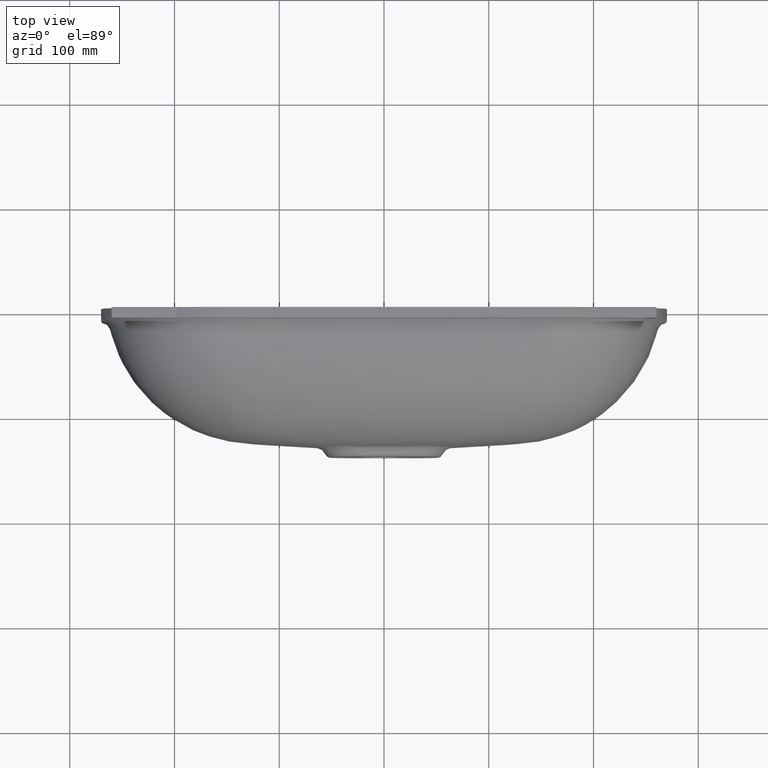
[diagram: clean part render]
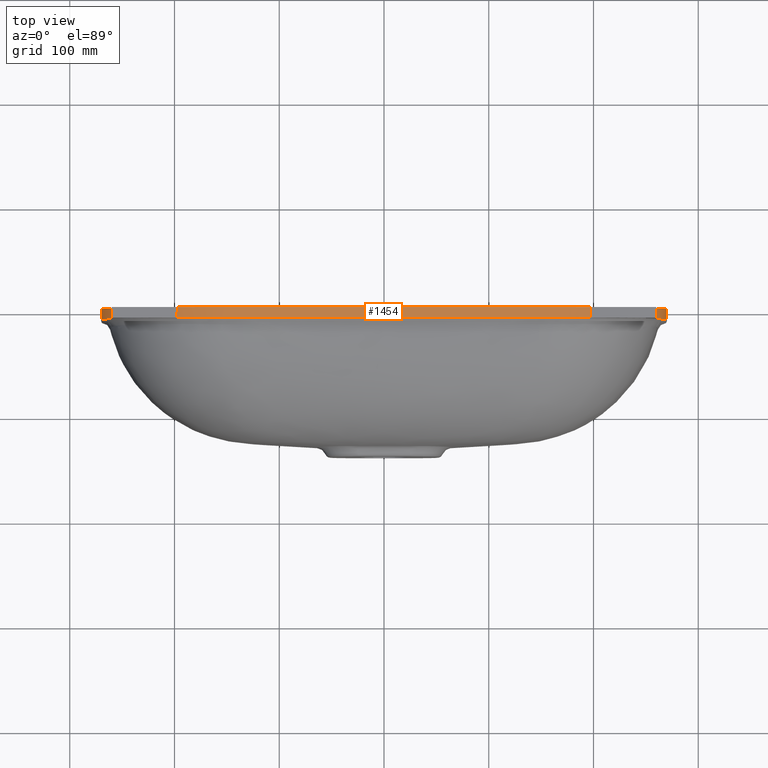
[diagram: same view with one face highlighted and labeled with its STEP entity id]
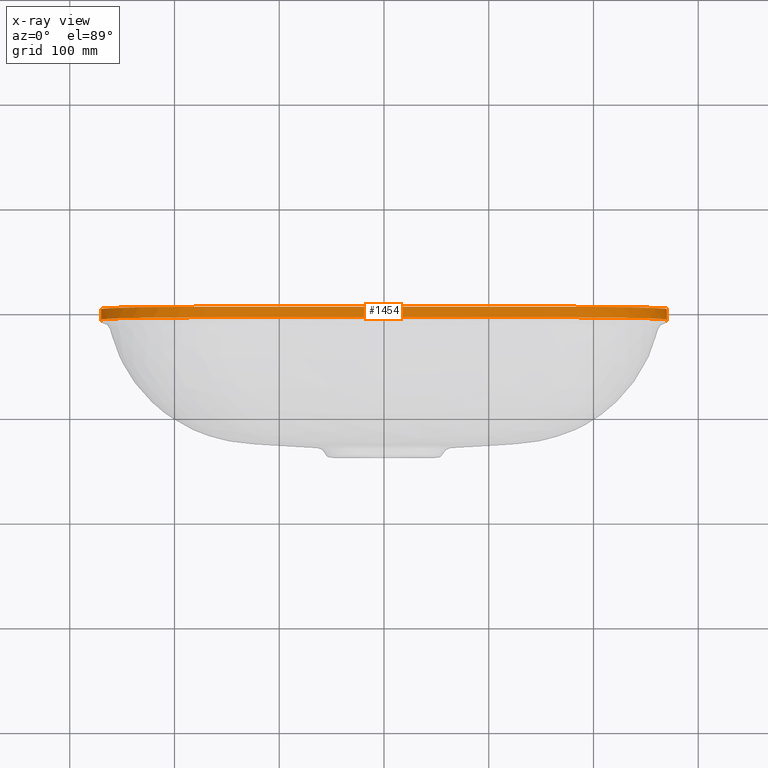
[diagram: x-ray of the same camera — body ghosted, the highlighted face saturated]
A machine part, top view. The second image highlights one B-rep face of the part: STEP entity #1454.
The next image is the same camera in x-ray: the body ghosted, the highlighted face saturated — about 0% of this face is hidden behind the body in this view.
In plain terms, the highlighted face is a freeform B-spline surface patch.
Its self-contained STEP definition (entity closure, byte-faithful):
#18 = CARTESIAN_POINT ( 'NONE',  ( 269.0837506339160500, -9.999999999999998200, 104.9383570076247700 ) ) ;
#21 = CARTESIAN_POINT ( 'NONE',  ( 269.9999999979303900, 1.734723475976807100E-015, 20.78778086666432000 ) ) ;
#97 = CARTESIAN_POINT ( 'NONE',  ( 269.9999999979303900, 0.0000000000000000000, 20.78778086666432000 ) ) ;
#128 = CARTESIAN_POINT ( 'NONE',  ( 24.94533690032585600, 1.734723475976807100E-015, 209.9999999999851400 ) ) ;
#509 = CARTESIAN_POINT ( 'NONE',  ( 270.0000002559552900, 1.734723475976807100E-015, 68.59966074269863200 ) ) ;
#578 = CARTESIAN_POINT ( 'NONE',  ( 269.9999999315269300, -10.00000000000000000, 62.36334645869577300 ) ) ;
#1096 = CARTESIAN_POINT ( 'NONE',  ( 147.8536460813975600, -10.00000000000000000, 209.9999777385825200 ) ) ;
#1454 = ADVANCED_FACE ( 'NONE', ( #54328 ), #45744, .T. ) ;
#1660 = CARTESIAN_POINT ( 'NONE',  ( -165.6940763227684700, -10.00000000000000000, 209.0133794498402400 ) ) ;
#1852 = CARTESIAN_POINT ( 'NONE',  ( -269.9725929624906900, -10.00000000000000000, 92.69478797603383700 ) ) ;
#2048 = CARTESIAN_POINT ( 'NONE',  ( -270.0000000034494900, -10.00000000000000000, 37.41800514000256300 ) ) ;
#2436 = CARTESIAN_POINT ( 'NONE',  ( -171.7855954895963700, -10.00000000000000000, 208.0817890172987700 ) ) ;
#2503 = CARTESIAN_POINT ( 'NONE',  ( -269.9999999315268200, -10.00000000000000000, 62.36334645869655400 ) ) ;
#2636 = CARTESIAN_POINT ( 'NONE',  ( -257.5122388328687200, 1.734723475976807100E-015, 143.9862207689271000 ) ) ;
#2682 = ORIENTED_EDGE ( 'NONE', *, *, #16535, .T. ) ;
#2705 = CARTESIAN_POINT ( 'NONE',  ( -269.9295588744512300, -10.00000000000000000, 94.24665970692353800 ) ) ;
#2833 = CARTESIAN_POINT ( 'NONE',  ( -157.0685959099253600, -10.00000000000000000, 209.8105912572539200 ) ) ;
#2890 = CARTESIAN_POINT ( 'NONE',  ( -270.0000000034494900, 0.0000000000000000000, 37.41800514000256300 ) ) ;
#3036 = CARTESIAN_POINT ( 'NONE',  ( 24.94533690032585600, -10.00000000000000000, 209.9999999999851400 ) ) ;
#3082 = CARTESIAN_POINT ( 'NONE',  ( -269.9989090961277000, 0.0000000000000000000, 90.67916029721917000 ) ) ;
#3113 = CARTESIAN_POINT ( 'NONE',  ( 269.3482558004325300, -10.00000000000000000, 102.9062910380727200 ) ) ;
#3284 = CARTESIAN_POINT ( 'NONE',  ( -230.6830875195464000, 0.0000000000000000000, 179.2423217409430800 ) ) ;
#3315 = CARTESIAN_POINT ( 'NONE',  ( 269.9999999315269300, -10.00000000000000000, 62.36334645869577300 ) ) ;
#3355 = CARTESIAN_POINT ( 'NONE',  ( -266.7008746016654800, -10.00000000000000000, 118.6865445568246100 ) ) ;
#3479 = CARTESIAN_POINT ( 'NONE',  ( -150.0567642220315200, 0.0000000000000000000, 210.0002014986488900 ) ) ;
#3511 = CARTESIAN_POINT ( 'NONE',  ( 266.7008746016657000, -10.00000000000000000, 118.6865445568234200 ) ) ;
#3552 = CARTESIAN_POINT ( 'NONE',  ( -160.7778795330079900, -10.00000000000000000, 209.5338315910096900 ) ) ;
#3677 = CARTESIAN_POINT ( 'NONE',  ( -99.78134762542164500, 0.0000000000000000000, 209.9999999989813700 ) ) ;
#3751 = CARTESIAN_POINT ( 'NONE',  ( -136.1599584593816700, -10.00000000000000000, 210.0000002185325300 ) ) ;
#3868 = CARTESIAN_POINT ( 'NONE',  ( 124.7266840044306000, 0.0000000000000000000, 210.0000000198599300 ) ) ;
#4059 = CARTESIAN_POINT ( 'NONE',  ( 153.9720779313047700, 0.0000000000000000000, 209.9456687487085000 ) ) ;
#4091 = CARTESIAN_POINT ( 'NONE',  ( 206.4696029942757900, -10.00000000000000000, 196.2281536887667500 ) ) ;
#4175 = CARTESIAN_POINT ( 'NONE',  ( 146.5536658791431800, -10.00000000000000000, 210.0000075504224200 ) ) ;
#4252 = CARTESIAN_POINT ( 'NONE',  ( 257.5122388328691700, 0.0000000000000000000, 143.9862207689259300 ) ) ;
#4359 = CARTESIAN_POINT ( 'NONE',  ( 186.0607092837029500, -10.00000000000000000, 204.5334088868958100 ) ) ;
#4362 = CARTESIAN_POINT ( 'NONE',  ( 269.9999999979303900, -10.00000000000000000, 20.78778086666432000 ) ) ;
#4439 = CARTESIAN_POINT ( 'NONE',  ( 270.0000762205853600, 0.0000000000000000000, 88.60323054345101900 ) ) ;
#4471 = CARTESIAN_POINT ( 'NONE',  ( 269.3482558004325300, 1.734723475976807100E-015, 102.9062910380727200 ) ) ;
#4626 = CARTESIAN_POINT ( 'NONE',  ( 270.0000000000001100, 0.0000000000000000000, -8.378714388967978300E-013 ) ) ;
#4656 = CARTESIAN_POINT ( 'NONE',  ( 250.0745177170223300, -10.00000000000000000, 156.7585963269911800 ) ) ;
#4852 = CARTESIAN_POINT ( 'NONE',  ( 269.9924562033707500, 1.734723475976807100E-015, 91.44359341950797700 ) ) ;
#4871 = CARTESIAN_POINT ( 'NONE',  ( 269.3054738967018700, -10.00000000000000200, 102.8867415546456000 ) ) ;
#4920 = CARTESIAN_POINT ( 'NONE',  ( 269.9924562033707500, -10.00000000000000000, 91.44359341950797700 ) ) ;
#5046 = CARTESIAN_POINT ( 'NONE',  ( 269.9999950186615900, -10.00000000000000000, 81.07265110330446600 ) ) ;
#5114 = CARTESIAN_POINT ( 'NONE',  ( 269.9999999896514300, -10.00000000000000000, 47.81189636082441300 ) ) ;
#5244 = CARTESIAN_POINT ( 'NONE',  ( 269.9999992465361100, 1.734723475976807100E-015, 73.79666797420361500 ) ) ;
#5439 = CARTESIAN_POINT ( 'NONE',  ( -87.30867914333923400, -10.00000000000000000, 210.0000000002670500 ) ) ;
#6082 = LINE ( 'NONE', #41108, #33429 ) ;
#6392 = CARTESIAN_POINT ( 'NONE',  ( -269.9725929624906900, 1.734723475976807100E-015, 92.69478797603383700 ) ) ;
#6786 = CARTESIAN_POINT ( 'NONE',  ( -269.9999999315268200, 1.734723475976807100E-015, 62.36334645869655400 ) ) ;
#7055 = CARTESIAN_POINT ( 'NONE',  ( -269.9999992465361100, -10.00000000000000000, 73.79666797420448200 ) ) ;
#7182 = CARTESIAN_POINT ( 'NONE',  ( -269.9295588744512300, 1.734723475976807100E-015, 94.24665970692353800 ) ) ;
#7250 = CARTESIAN_POINT ( 'NONE',  ( -269.7033524342809900, -10.00000000000000000, 98.58635249750936700 ) ) ;
#7431 = CARTESIAN_POINT ( 'NONE',  ( -270.0000000179375100, 0.0000000000000000000, 56.12700692251393500 ) ) ;
#7573 = CARTESIAN_POINT ( 'NONE',  ( -269.8490466232272500, -10.00000000000000000, 96.10947751011814000 ) ) ;
#7585 = CARTESIAN_POINT ( 'NONE',  ( 70.67845455384558300, -10.00000000000000000, 209.9999999998459300 ) ) ;
#7633 = CARTESIAN_POINT ( 'NONE',  ( -269.9725929624906900, 0.0000000000000000000, 92.69478797603383700 ) ) ;
#7665 = CARTESIAN_POINT ( 'NONE',  ( 269.7033524342811600, -10.00000000000000000, 98.58635249750824400 ) ) ;
#7773 = CARTESIAN_POINT ( 'NONE',  ( -269.9999992465361100, 1.734723475976807100E-015, 73.79666797420448200 ) ) ;
#7833 = CARTESIAN_POINT ( 'NONE',  ( -206.4696029942743100, 0.0000000000000000000, 196.2281536887675500 ) ) ;
#7903 = CARTESIAN_POINT ( 'NONE',  ( -257.5122388328687200, -10.00000000000000000, 143.9862207689271000 ) ) ;
#8024 = CARTESIAN_POINT ( 'NONE',  ( -148.8915174089079600, 0.0000000000000000000, 210.0000385604670300 ) ) ;
#8056 = CARTESIAN_POINT ( 'NONE',  ( 269.9999950186615900, 1.734723475976807100E-015, 81.07265110330446600 ) ) ;
#8097 = CARTESIAN_POINT ( 'NONE',  ( -153.9720779313029200, -10.00000000000000000, 209.9456687487084700 ) ) ;
#8162 = CARTESIAN_POINT ( 'NONE',  ( -269.9999992465361100, -10.00000000000000000, 73.79666797420448200 ) ) ;
#8221 = CARTESIAN_POINT ( 'NONE',  ( -70.67845455384375000, 0.0000000000000000000, 209.9999999998460700 ) ) ;
#8295 = CARTESIAN_POINT ( 'NONE',  ( -124.7266840044288600, -10.00000000000000000, 210.0000000198599500 ) ) ;
#8413 = CARTESIAN_POINT ( 'NONE',  ( 136.1599584593832900, 0.0000000000000000000, 210.0000002185324200 ) ) ;
#8445 = CARTESIAN_POINT ( 'NONE',  ( 157.0685959099272100, 1.734723475976807100E-015, 209.8105912572537800 ) ) ;
#8601 = CARTESIAN_POINT ( 'NONE',  ( 160.7778795330099800, 0.0000000000000000000, 209.5338315910096300 ) ) ;
#8634 = CARTESIAN_POINT ( 'NONE',  ( 270.0000013050440100, -10.00000000000000000, 77.95409759789123400 ) ) ;
#8693 = VERTEX_POINT ( 'NONE', #32181 ) ;
#8716 = CARTESIAN_POINT ( 'NONE',  ( 148.8915174089096100, -10.00000000000000000, 210.0000385604670600 ) ) ;
#8794 = CARTESIAN_POINT ( 'NONE',  ( 266.7008746016657000, 0.0000000000000000000, 118.6865445568234200 ) ) ;
#8826 = CARTESIAN_POINT ( 'NONE',  ( -49.89067379869972300, -10.00000000000000000, 210.0000000000528600 ) ) ;
#8903 = CARTESIAN_POINT ( 'NONE',  ( 206.4696029942757900, -10.00000000000000000, 196.2281536887667500 ) ) ;
#8985 = CARTESIAN_POINT ( 'NONE',  ( 270.0000186203101300, 0.0000000000000000000, 84.18936753888587500 ) ) ;
#9016 = CARTESIAN_POINT ( 'NONE',  ( 269.8490466232274200, 1.734723475976807100E-015, 96.10947751011706000 ) ) ;
#9203 = CARTESIAN_POINT ( 'NONE',  ( -144.9948200865848100, -10.00000000000000000, 209.9999980220962100 ) ) ;
#9395 = CARTESIAN_POINT ( 'NONE',  ( 150.7077476708005600, 1.734723475976807100E-015, 209.9987236594665800 ) ) ;
#9461 = CARTESIAN_POINT ( 'NONE',  ( 270.0001887156256000, -10.00000000000000000, 90.02547595476980300 ) ) ;
#9538 = DIRECTION ( 'NONE',  ( 0.0000000000000000000, 1.000000000000000000, 0.0000000000000000000 ) ) ;
#9585 = CARTESIAN_POINT ( 'NONE',  ( 269.9725929624909800, 1.734723475976807100E-015, 92.69478797603277100 ) ) ;
#9655 = CARTESIAN_POINT ( 'NONE',  ( 269.9999999979303900, -10.00000000000000000, 20.78778086666432000 ) ) ;
#9782 = CARTESIAN_POINT ( 'NONE',  ( -140.3175295076217700, -10.00000000000000000, 209.9999996214888500 ) ) ;
#9977 = CARTESIAN_POINT ( 'NONE',  ( 87.30867914334096700, 1.734723475976807100E-015, 210.0000000002670500 ) ) ;
#11517 = CARTESIAN_POINT ( 'NONE',  ( -269.9999999896513700, 1.734723475976807100E-015, 47.81189636082517300 ) ) ;
#11585 = CARTESIAN_POINT ( 'NONE',  ( -269.9999950186614800, -10.00000000000000000, 81.07265110330531900 ) ) ;
#11784 = CARTESIAN_POINT ( 'NONE',  ( -269.3493136958907100, -10.00000000000000000, 102.4810898952694600 ) ) ;
#11863 = EDGE_LOOP ( 'NONE', ( #23819, #46463, #32991, #11921, #31844, #15403, #47325, #2682 ) ) ;
#11921 = ORIENTED_EDGE ( 'NONE', *, *, #40276, .F. ) ;
#11924 = CARTESIAN_POINT ( 'NONE',  ( -109.6120045407571400, -10.00000000000000200, 210.0000000009310100 ) ) ;
#11972 = CARTESIAN_POINT ( 'NONE',  ( -270.0000002559552300, 0.0000000000000000000, 68.59966074269942700 ) ) ;
#12118 = CARTESIAN_POINT ( 'NONE',  ( 98.90067712782068600, -10.00000000000000000, 209.9999999990720300 ) ) ;
#12165 = CARTESIAN_POINT ( 'NONE',  ( -269.8490466232272500, 0.0000000000000000000, 96.10947751011814000 ) ) ;
#12195 = CARTESIAN_POINT ( 'NONE',  ( -142.9159641871609100, 1.734723475976807100E-015, 210.0000011408924100 ) ) ;
#12279 = CARTESIAN_POINT ( 'NONE',  ( 110.4926750403410000, -10.00000000000000000, 210.0000000007608500 ) ) ;
#12360 = CARTESIAN_POINT ( 'NONE',  ( -186.0607092837011900, 0.0000000000000000000, 204.5334088868962100 ) ) ;
#12391 = CARTESIAN_POINT ( 'NONE',  ( 136.1599584593832900, -10.00000000000000000, 210.0000002185324200 ) ) ;
#12432 = CARTESIAN_POINT ( 'NONE',  ( -241.1085158496873400, -10.00000000000000000, 168.5652941072058300 ) ) ;
#12495 = CARTESIAN_POINT ( 'NONE',  ( -269.9295588744512300, -10.00000000000000000, 94.24665970692353800 ) ) ;
#12554 = CARTESIAN_POINT ( 'NONE',  ( -146.5536658791416200, 0.0000000000000000000, 210.0000075504224500 ) ) ;
#12586 = CARTESIAN_POINT ( 'NONE',  ( 269.9924562033707500, -10.00000000000000000, 91.44359341950797700 ) ) ;
#12628 = CARTESIAN_POINT ( 'NONE',  ( -150.7077476707988000, -10.00000000000000000, 209.9987236594665800 ) ) ;
#12751 = CARTESIAN_POINT ( 'NONE',  ( -24.94533690032407200, 0.0000000000000000000, 209.9999999999851100 ) ) ;
#12822 = CARTESIAN_POINT ( 'NONE',  ( -113.4521236354109300, -10.00000000000000000, 209.9999999997697000 ) ) ;
#12940 = CARTESIAN_POINT ( 'NONE',  ( 142.9159641871625900, 0.0000000000000000000, 210.0000011408922900 ) ) ;
#12971 = CARTESIAN_POINT ( 'NONE',  ( 269.9998925207721600, 1.734723475976807100E-015, 89.52398707269368600 ) ) ;
#13050 = CARTESIAN_POINT ( 'NONE',  ( 109.6120045407619300, -10.00000000000000000, 210.0000000009308400 ) ) ;
#13127 = CARTESIAN_POINT ( 'NONE',  ( 171.7855954895982200, 0.0000000000000000000, 208.0817890172985500 ) ) ;
#13158 = CARTESIAN_POINT ( 'NONE',  ( 269.9295588744512900, 1.734723475976807100E-015, 94.24665970692242900 ) ) ;
#13241 = CARTESIAN_POINT ( 'NONE',  ( 150.0567642220336500, -10.00000000000000000, 210.0002014986488900 ) ) ;
#13322 = CARTESIAN_POINT ( 'NONE',  ( 269.3482558004325300, 0.0000000000000000000, 102.9062910380727200 ) ) ;
#13352 = CARTESIAN_POINT ( 'NONE',  ( 142.9159641871625900, 1.734723475976807100E-015, 210.0000011408922900 ) ) ;
#13430 = CARTESIAN_POINT ( 'NONE',  ( 230.6830875195475100, -10.00000000000000000, 179.2423217409421700 ) ) ;
#13510 = CARTESIAN_POINT ( 'NONE',  ( 270.0000013050440100, 0.0000000000000000000, 77.95409759789123400 ) ) ;
#13542 = CARTESIAN_POINT ( 'NONE',  ( 195.3075503483810000, -10.00000000000000000, 201.3104615763086000 ) ) ;
#13665 = CARTESIAN_POINT ( 'NONE',  ( -268.5577864653316200, 1.734723475976807100E-015, 109.0271298878453800 ) ) ;
#13727 = CARTESIAN_POINT ( 'NONE',  ( -130.9630205774501500, -10.00000000000000000, 209.9999999257636000 ) ) ;
#13921 = CARTESIAN_POINT ( 'NONE',  ( 147.8536460813975600, 1.734723475976807100E-015, 209.9999777385825200 ) ) ;
#13988 = CARTESIAN_POINT ( 'NONE',  ( 270.0000762205853600, -10.00000000000000000, 88.60323054345101900 ) ) ;
#14113 = CARTESIAN_POINT ( 'NONE',  ( 136.1599584593832900, 1.734723475976807100E-015, 210.0000002185324200 ) ) ;
#14182 = CARTESIAN_POINT ( 'NONE',  ( 270.0000000000001100, -10.00000000000000000, -8.378714388967978300E-013 ) ) ;
#14307 = CARTESIAN_POINT ( 'NONE',  ( 269.9999451868002900, 1.734723475976807100E-015, 86.79235372827011500 ) ) ;
#14504 = CARTESIAN_POINT ( 'NONE',  ( 124.7266840044306000, 1.734723475976807100E-015, 210.0000000198599300 ) ) ;
#15243 = VERTEX_POINT ( 'NONE', #30187 ) ;
#15403 = ORIENTED_EDGE ( 'NONE', *, *, #22525, .T. ) ;
#15453 = CARTESIAN_POINT ( 'NONE',  ( -269.9999999999999400, 1.734723475976807100E-015, -7.025630077706068700E-014 ) ) ;
#15650 = CARTESIAN_POINT ( 'NONE',  ( -148.8915174089079600, 1.734723475976807100E-015, 210.0000385604670300 ) ) ;
#16109 = CARTESIAN_POINT ( 'NONE',  ( -269.9999451868002300, -10.00000000000000000, 86.79235372827095300 ) ) ;
#16488 = CARTESIAN_POINT ( 'NONE',  ( -270.0000013050438400, 0.0000000000000000000, 77.95409759789203000 ) ) ;
#16535 = EDGE_CURVE ( 'NONE', #34484, #33625, #35854, .T. ) ;
#16628 = CARTESIAN_POINT ( 'NONE',  ( -269.9999999999999400, -10.00000000000000000, -7.025630077706068700E-014 ) ) ;
#16640 = CARTESIAN_POINT ( 'NONE',  ( 109.6120045407619300, -10.00000000000000000, 210.0000000009308400 ) ) ;
#16690 = CARTESIAN_POINT ( 'NONE',  ( -269.3482558004323600, 0.0000000000000000000, 102.9062910380738300 ) ) ;
#16721 = CARTESIAN_POINT ( 'NONE',  ( 9.211381657436845700E-013, 1.734723475976807100E-015, 210.0000000000075900 ) ) ;
#16843 = VECTOR ( 'NONE', #48458, 1000.000000000000000 ) ;
#16883 = CARTESIAN_POINT ( 'NONE',  ( -171.7855954895963700, 0.0000000000000000000, 208.0817890172987700 ) ) ;
#16916 = CARTESIAN_POINT ( 'NONE',  ( 270.0000762205853600, 1.734723475976807100E-015, 88.60323054345101900 ) ) ;
#16957 = CARTESIAN_POINT ( 'NONE',  ( -219.0749844227327100, -10.00000000000000000, 188.4890306784032500 ) ) ;
#17021 = CARTESIAN_POINT ( 'NONE',  ( -195.3075503483792700, 1.734723475976807100E-015, 201.3104615763093900 ) ) ;
#17081 = CARTESIAN_POINT ( 'NONE',  ( -142.9159641871609100, 0.0000000000000000000, 210.0000011408924100 ) ) ;
#17112 = CARTESIAN_POINT ( 'NONE',  ( 149.5449980534378900, -10.00000000000000000, 209.9998837718098900 ) ) ;
#17153 = CARTESIAN_POINT ( 'NONE',  ( -149.5449980534365900, -10.00000000000000000, 209.9998837718099500 ) ) ;
#17275 = CARTESIAN_POINT ( 'NONE',  ( 24.94533690032585600, 0.0000000000000000000, 209.9999999999851400 ) ) ;
#17345 = CARTESIAN_POINT ( 'NONE',  ( -109.6120045407571400, -10.00000000000000200, 210.0000000009310100 ) ) ;
#17467 = CARTESIAN_POINT ( 'NONE',  ( 146.5536658791431800, 0.0000000000000000000, 210.0000075504224200 ) ) ;
#17498 = CARTESIAN_POINT ( 'NONE',  ( 160.7778795330099800, -10.00000000000000000, 209.5338315910096300 ) ) ;
#17569 = VERTEX_POINT ( 'NONE', #31191 ) ;
#17579 = CARTESIAN_POINT ( 'NONE',  ( 118.4903504048331400, -10.00000000000000000, 209.9999999947970900 ) ) ;
#17656 = CARTESIAN_POINT ( 'NONE',  ( 186.0607092837029500, 0.0000000000000000000, 204.5334088868958100 ) ) ;
#17688 = CARTESIAN_POINT ( 'NONE',  ( 99.78134762542342200, -10.00000000000000000, 209.9999999989812500 ) ) ;
#17768 = CARTESIAN_POINT ( 'NONE',  ( 151.7814486181941000, -10.00000000000000000, 209.9894578118687300 ) ) ;
#17845 = CARTESIAN_POINT ( 'NONE',  ( 269.8490466232274200, 0.0000000000000000000, 96.10947751011706000 ) ) ;
#17875 = CARTESIAN_POINT ( 'NONE',  ( -136.1599584593816700, -10.00000000000000000, 210.0000002185325300 ) ) ;
#17955 = CARTESIAN_POINT ( 'NONE',  ( 250.0745177170223300, -10.00000000000000000, 156.7585963269911800 ) ) ;
#18034 = CARTESIAN_POINT ( 'NONE',  ( 270.0000002559552900, 0.0000000000000000000, 68.59966074269863200 ) ) ;
#18064 = CARTESIAN_POINT ( 'NONE',  ( 118.4903504048331400, -10.00000000000000000, 209.9999999947970900 ) ) ;
#18247 = CARTESIAN_POINT ( 'NONE',  ( 165.6940763227702300, 1.734723475976807100E-015, 209.0133794498399300 ) ) ;
#18437 = CARTESIAN_POINT ( 'NONE',  ( 153.9720779313047700, -10.00000000000000000, 209.9456687487085000 ) ) ;
#18504 = CARTESIAN_POINT ( 'NONE',  ( 270.0000186203101300, -10.00000000000000000, 84.18936753888587500 ) ) ;
#18629 = CARTESIAN_POINT ( 'NONE',  ( 171.7855954895982200, 1.734723475976807100E-015, 208.0817890172985500 ) ) ;
#18826 = CARTESIAN_POINT ( 'NONE',  ( 130.9630205774518300, 1.734723475976807100E-015, 209.9999999257635700 ) ) ;
#19025 = CARTESIAN_POINT ( 'NONE',  ( -124.7266840044288600, 1.734723475976807100E-015, 210.0000000198599500 ) ) ;
#19974 = CARTESIAN_POINT ( 'NONE',  ( -266.7008746016654800, -10.00000000000000000, 118.6865445568246100 ) ) ;
#20371 = CARTESIAN_POINT ( 'NONE',  ( -150.7077476707988000, 1.734723475976807100E-015, 209.9987236594665800 ) ) ;
#20439 = CARTESIAN_POINT ( 'NONE',  ( -269.9999999999999400, -10.00000000000000000, 8.315112346666033700 ) ) ;
#20563 = CARTESIAN_POINT ( 'NONE',  ( -270.0001887156254300, 1.734723475976807100E-015, 90.02547595477086900 ) ) ;
#20633 = CARTESIAN_POINT ( 'NONE',  ( -269.9998925207719900, -10.00000000000000000, 89.52398707269451000 ) ) ;
#20763 = CARTESIAN_POINT ( 'NONE',  ( -269.9924562033705800, -10.00000000000000000, 91.44359341950912800 ) ) ;
#20955 = CARTESIAN_POINT ( 'NONE',  ( -270.0000013050438400, -10.00000000000000000, 77.95409759789203000 ) ) ;
#20967 = CARTESIAN_POINT ( 'NONE',  ( -87.30867914333923400, -10.00000000000000000, 210.0000000002670500 ) ) ;
#21015 = CARTESIAN_POINT ( 'NONE',  ( -270.0000186203100200, 0.0000000000000000000, 84.18936753888677100 ) ) ;
#21213 = CARTESIAN_POINT ( 'NONE',  ( -266.7008746016654800, 0.0000000000000000000, 118.6865445568246100 ) ) ;
#21243 = CARTESIAN_POINT ( 'NONE',  ( 269.9999451868002900, -10.00000000000000000, 86.79235372827011500 ) ) ;
#21350 = CARTESIAN_POINT ( 'NONE',  ( -269.9998925207719900, -10.00000000000000000, 89.52398707269451000 ) ) ;
#21363 = CARTESIAN_POINT ( 'NONE',  ( -269.9999999999999400, -10.00000000000000000, -7.025630077706068700E-014 ) ) ;
#21408 = CARTESIAN_POINT ( 'NONE',  ( -160.7778795330079900, 0.0000000000000000000, 209.5338315910096900 ) ) ;
#21439 = CARTESIAN_POINT ( 'NONE',  ( 263.2936646623180600, -10.00000000000000000, 130.4607443267278500 ) ) ;
#21480 = CARTESIAN_POINT ( 'NONE',  ( -195.3075503483792700, -10.00000000000000000, 201.3104615763093900 ) ) ;
#21543 = CARTESIAN_POINT ( 'NONE',  ( -157.0685959099253600, 1.734723475976807100E-015, 209.8105912572539200 ) ) ;
#21601 = CARTESIAN_POINT ( 'NONE',  ( -136.1599584593816700, 0.0000000000000000000, 210.0000002185325300 ) ) ;
#21674 = CARTESIAN_POINT ( 'NONE',  ( -147.8536460813959100, -10.00000000000000000, 209.9999777385825700 ) ) ;
#21737 = CARTESIAN_POINT ( 'NONE',  ( -268.5577864653316200, -10.00000000000000000, 109.0271298878453800 ) ) ;
#21796 = CARTESIAN_POINT ( 'NONE',  ( 70.67845455384558300, 0.0000000000000000000, 209.9999999998459300 ) ) ;
#21827 = CARTESIAN_POINT ( 'NONE',  ( 270.0000762205853600, -10.00000000000000000, 88.60323054345101900 ) ) ;
#21869 = CARTESIAN_POINT ( 'NONE',  ( 269.3054738967018700, -10.00000000000000200, 102.8867415546456000 ) ) ;
#21986 = CARTESIAN_POINT ( 'NONE',  ( 148.8915174089096100, 0.0000000000000000000, 210.0000385604670600 ) ) ;
#22017 = CARTESIAN_POINT ( 'NONE',  ( 150.0567642220336500, 1.734723475976807100E-015, 210.0002014986488900 ) ) ;
#22057 = CARTESIAN_POINT ( 'NONE',  ( 269.5176708940514900, -10.00000000000000000, 100.8452667350663000 ) ) ;
#22098 = CARTESIAN_POINT ( 'NONE',  ( 130.9630205774518300, -10.00000000000000000, 209.9999999257635700 ) ) ;
#22177 = CARTESIAN_POINT ( 'NONE',  ( 206.4696029942757900, 0.0000000000000000000, 196.2281536887667500 ) ) ;
#22234 = B_SPLINE_CURVE_WITH_KNOTS ( 'NONE', 3,
 ( #11924, #41542, #48065, #20967, #52604, #25499, #57145, #30025, #3036, #34583, #7585, #39136, #12118, #43698, #16640 ),
 .UNSPECIFIED., .F., .F.,
 ( 4, 1, 1, 1, 1, 1, 1, 1, 1, 1, 1, 1, 4 ),
 ( 0.1813423756039847800, 0.1875000000000000000, 0.1953125000000000000, 0.2031250000000000000, 0.2187500000000000000, 0.2343750000000000000, 0.2500000000000000000, 0.2656250000000000000, 0.2812500000000000000, 0.2968750000000000000, 0.3046875000000000000, 0.3125000000000000000, 0.3186576243960171400 ),
 .UNSPECIFIED. ) ;
#22290 = CARTESIAN_POINT ( 'NONE',  ( 157.0685959099272100, -10.00000000000000000, 209.8105912572537800 ) ) ;
#22293 = CARTESIAN_POINT ( 'NONE',  ( 270.0000000034497100, 1.734723475976807100E-015, 37.41800514000181700 ) ) ;
#22370 = CARTESIAN_POINT ( 'NONE',  ( 269.9725929624909800, 0.0000000000000000000, 92.69478797603277100 ) ) ;
#22401 = CARTESIAN_POINT ( 'NONE',  ( -124.7266840044288600, -10.00000000000000000, 210.0000000198599500 ) ) ;
#22481 = CARTESIAN_POINT ( 'NONE',  ( 263.2936646623180600, -10.00000000000000000, 130.4607443267278500 ) ) ;
#22525 = EDGE_CURVE ( 'NONE', #55026, #17569, #47970, .T. ) ;
#22560 = CARTESIAN_POINT ( 'NONE',  ( 270.0000000179377900, 0.0000000000000000000, 56.12700692251313900 ) ) ;
#22593 = CARTESIAN_POINT ( 'NONE',  ( 24.94533690032585600, -10.00000000000000000, 209.9999999999851400 ) ) ;
#22673 = CARTESIAN_POINT ( 'NONE',  ( 270.0000000000001100, -10.00000000000000000, 8.315112346665227200 ) ) ;
#22776 = CARTESIAN_POINT ( 'NONE',  ( 241.1085158496882700, -10.00000000000000000, 168.5652941072048100 ) ) ;
#22860 = CARTESIAN_POINT ( 'NONE',  ( 269.9999999896514300, 1.734723475976807100E-015, 47.81189636082441300 ) ) ;
#22965 = CARTESIAN_POINT ( 'NONE',  ( 178.9866929004942900, 1.734723475976807100E-015, 206.5232968775885600 ) ) ;
#22991 = B_SPLINE_CURVE_WITH_KNOTS ( 'NONE', 3,
 ( #47527, #20439, #52065, #24962, #56606, #29495, #2503, #34052, #7055, #38603, #11585, #43164, #16109, #47722, #20633, #52265, #25161, #56802, #29692, #2705, #34249, #7250, #38803, #11784, #43362 ),
 .UNSPECIFIED., .F., .F.,
 ( 4, 1, 1, 1, 1, 1, 1, 1, 1, 1, 1, 1, 1, 1, 1, 1, 1, 1, 1, 1, 1, 1, 4 ),
 ( 0.0000000000000000000, 0.01562500000000000000, 0.02343750000000000000, 0.03125000000000000000, 0.03515625000000000000, 0.03906250000000000000, 0.04296875000000000000, 0.04687500000000000000, 0.04882812500000000000, 0.05078125000000000000, 0.05273437500000000000, 0.05468750000000000000, 0.05566406250000000000, 0.05615234375000000000, 0.05639648437500000000, 0.05664062500000000000, 0.05712890625000000000, 0.05761718750000000000, 0.05859375000000000000, 0.05957031250000000000, 0.06054687500000000000, 0.06250000000000000000, 0.06314485329516281200 ),
 .UNSPECIFIED. ) ;
#23034 = CARTESIAN_POINT ( 'NONE',  ( 270.0000013050440100, -10.00000000000000000, 77.95409759789123400 ) ) ;
#23161 = CARTESIAN_POINT ( 'NONE',  ( 230.6830875195475100, -10.00000000000000000, 179.2423217409421700 ) ) ;
#23322 = EDGE_CURVE ( 'NONE', #33625, #8693, #32307, .T. ) ;
#23359 = CARTESIAN_POINT ( 'NONE',  ( 178.9866929004942900, -10.00000000000000000, 206.5232968775885600 ) ) ;
#23553 = CARTESIAN_POINT ( 'NONE',  ( 269.9989090961277600, 1.734723475976807100E-015, 90.67916029721811800 ) ) ;
#23819 = ORIENTED_EDGE ( 'NONE', *, *, #23322, .T. ) ;
#24114 = CARTESIAN_POINT ( 'NONE',  ( -269.9999950186614800, 1.734723475976807100E-015, 81.07265110330531900 ) ) ;
#24894 = CARTESIAN_POINT ( 'NONE',  ( -269.9999950186614800, -10.00000000000000000, 81.07265110330531900 ) ) ;
#24962 = CARTESIAN_POINT ( 'NONE',  ( -270.0000000034494900, -10.00000000000000000, 37.41800514000256300 ) ) ;
#25161 = CARTESIAN_POINT ( 'NONE',  ( -269.9989090961277000, -10.00000000000000000, 90.67916029721917000 ) ) ;
#25293 = CARTESIAN_POINT ( 'NONE',  ( -269.9999451868002300, -10.00000000000000000, 86.79235372827095300 ) ) ;
#25350 = CARTESIAN_POINT ( 'NONE',  ( -269.9999999999999400, 0.0000000000000000000, -7.025630077706068700E-014 ) ) ;
#25499 = CARTESIAN_POINT ( 'NONE',  ( -49.89067379869972300, -10.00000000000000000, 210.0000000000528600 ) ) ;
#25546 = CARTESIAN_POINT ( 'NONE',  ( -270.0000762205853000, 0.0000000000000000000, 88.60323054345198600 ) ) ;
#25746 = CARTESIAN_POINT ( 'NONE',  ( -257.5122388328687200, 0.0000000000000000000, 143.9862207689271000 ) ) ;
#25775 = CARTESIAN_POINT ( 'NONE',  ( 269.9989090961277600, -10.00000000000000000, 90.67916029721811800 ) ) ;
#25882 = CARTESIAN_POINT ( 'NONE',  ( -263.2936646623175000, 1.734723475976807100E-015, 130.4607443267291600 ) ) ;
#25941 = CARTESIAN_POINT ( 'NONE',  ( -153.9720779313029200, 0.0000000000000000000, 209.9456687487084700 ) ) ;
#25973 = CARTESIAN_POINT ( 'NONE',  ( 49.89067379870150600, 1.734723475976807100E-015, 210.0000000000528100 ) ) ;
#26014 = CARTESIAN_POINT ( 'NONE',  ( -178.9866929004925300, -10.00000000000000000, 206.5232968775890200 ) ) ;
#26134 = CARTESIAN_POINT ( 'NONE',  ( -124.7266840044288600, 0.0000000000000000000, 210.0000000198599500 ) ) ;
#26166 = CARTESIAN_POINT ( 'NONE',  ( 257.5122388328691700, -10.00000000000000000, 143.9862207689259300 ) ) ;
#26207 = CARTESIAN_POINT ( 'NONE',  ( -144.9948200865848100, -10.00000000000000000, 209.9999980220962100 ) ) ;
#26270 = CARTESIAN_POINT ( 'NONE',  ( -270.0000002559552300, 1.734723475976807100E-015, 68.59966074269942700 ) ) ;
#26328 = CARTESIAN_POINT ( 'NONE',  ( 99.78134762542342200, 0.0000000000000000000, 209.9999999989812500 ) ) ;
#26516 = CARTESIAN_POINT ( 'NONE',  ( 150.0567642220336500, 0.0000000000000000000, 210.0002014986488900 ) ) ;
#26547 = CARTESIAN_POINT ( 'NONE',  ( 150.7077476708005600, -10.00000000000000000, 209.9987236594665800 ) ) ;
#26590 = CARTESIAN_POINT ( 'NONE',  ( 269.8490466232274200, -10.00000000000000000, 96.10947751011706000 ) ) ;
#26634 = CARTESIAN_POINT ( 'NONE',  ( 140.3175295076234500, -10.00000000000000000, 209.9999996214889700 ) ) ;
#26711 = CARTESIAN_POINT ( 'NONE',  ( 230.6830875195475100, 0.0000000000000000000, 179.2423217409421700 ) ) ;
#26822 = CARTESIAN_POINT ( 'NONE',  ( 165.6940763227702300, -10.00000000000000000, 209.0133794498399300 ) ) ;
#26825 = CARTESIAN_POINT ( 'NONE',  ( 270.0000000179377900, 1.734723475976807100E-015, 56.12700692251313900 ) ) ;
#26900 = CARTESIAN_POINT ( 'NONE',  ( 269.9989090961277600, 0.0000000000000000000, 90.67916029721811800 ) ) ;
#26931 = CARTESIAN_POINT ( 'NONE',  ( -146.5536658791416200, 1.734723475976807100E-015, 210.0000075504224500 ) ) ;
#27010 = CARTESIAN_POINT ( 'NONE',  ( 268.4811505783497400, -10.00000000000000000, 109.4257798320716400 ) ) ;
#27088 = CARTESIAN_POINT ( 'NONE',  ( 270.0000000034497100, 0.0000000000000000000, 37.41800514000181700 ) ) ;
#27111 = CARTESIAN_POINT ( 'NONE',  ( -269.9999999999999400, -10.00000000000000000, -7.025630077706068700E-014 ) ) ;
#27119 = CARTESIAN_POINT ( 'NONE',  ( -140.3175295076217700, 1.734723475976807100E-015, 209.9999996214888500 ) ) ;
#27502 = CARTESIAN_POINT ( 'NONE',  ( 87.30867914334096700, -10.00000000000000000, 210.0000000002670500 ) ) ;
#27568 = CARTESIAN_POINT ( 'NONE',  ( 270.0000002559552900, -10.00000000000000000, 68.59966074269863200 ) ) ;
#27694 = CARTESIAN_POINT ( 'NONE',  ( 146.5536658791431800, 1.734723475976807100E-015, 210.0000075504224200 ) ) ;
#27886 = CARTESIAN_POINT ( 'NONE',  ( 270.0001887156256000, 1.734723475976807100E-015, 90.02547595476980300 ) ) ;
#28085 = CARTESIAN_POINT ( 'NONE',  ( -136.1599584593816700, 1.734723475976807100E-015, 210.0000002185325300 ) ) ;
#28451 = CARTESIAN_POINT ( 'NONE',  ( -269.9999999315268200, -10.00000000000000000, 62.36334645869655400 ) ) ;
#28737 = VERTEX_POINT ( 'NONE', #52776 ) ;
#28840 = CARTESIAN_POINT ( 'NONE',  ( -241.1085158496873400, 1.734723475976807100E-015, 168.5652941072058300 ) ) ;
#29230 = CARTESIAN_POINT ( 'NONE',  ( -269.7033524342809900, -10.00000000000000000, 98.58635249750936700 ) ) ;
#29495 = CARTESIAN_POINT ( 'NONE',  ( -270.0000000179375100, -10.00000000000000000, 56.12700692251393500 ) ) ;
#29692 = CARTESIAN_POINT ( 'NONE',  ( -269.9725929624906900, -10.00000000000000000, 92.69478797603383700 ) ) ;
#29822 = CARTESIAN_POINT ( 'NONE',  ( -269.8490466232272500, 1.734723475976807100E-015, 96.10947751011814000 ) ) ;
#29879 = CARTESIAN_POINT ( 'NONE',  ( -269.9999999979301600, 0.0000000000000000000, 20.78778086666518400 ) ) ;
#30025 = CARTESIAN_POINT ( 'NONE',  ( 9.211381657436845700E-013, -10.00000000000000000, 210.0000000000075900 ) ) ;
#30075 = CARTESIAN_POINT ( 'NONE',  ( -270.0001887156254300, 0.0000000000000000000, 90.02547595477086900 ) ) ;
#30105 = CARTESIAN_POINT ( 'NONE',  ( -99.78134762542164500, -10.00000000000000000, 209.9999999989813700 ) ) ;
#30187 = CARTESIAN_POINT ( 'NONE',  ( -269.9999999999999400, 0.0000000000000000000, -7.025630077706068700E-014 ) ) ;
#30212 = CARTESIAN_POINT ( 'NONE',  ( -269.3482558004323600, -10.00000000000000000, 102.9062910380738300 ) ) ;
#30273 = CARTESIAN_POINT ( 'NONE',  ( -241.1085158496873400, 0.0000000000000000000, 168.5652941072058300 ) ) ;
#30305 = CARTESIAN_POINT ( 'NONE',  ( 270.0000000179377900, -10.00000000000000000, 56.12700692251313900 ) ) ;
#30345 = CARTESIAN_POINT ( 'NONE',  ( -268.4811505783484300, -10.00000000000000000, 109.4257798320780400 ) ) ;
#30409 = CARTESIAN_POINT ( 'NONE',  ( -269.9998925207719900, 1.734723475976807100E-015, 89.52398707269451000 ) ) ;
#30468 = CARTESIAN_POINT ( 'NONE',  ( -150.7077476707988000, 0.0000000000000000000, 209.9987236594665800 ) ) ;
#30499 = CARTESIAN_POINT ( 'NONE',  ( 148.8915174089096100, 1.734723475976807100E-015, 210.0000385604670600 ) ) ;
#30542 = CARTESIAN_POINT ( 'NONE',  ( -165.6940763227684700, -10.00000000000000000, 209.0133794498402400 ) ) ;
#30666 = CARTESIAN_POINT ( 'NONE',  ( -110.1752379000459000, 0.0000000000000000000, 210.0000000030039500 ) ) ;
#30698 = CARTESIAN_POINT ( 'NONE',  ( 219.0749844227340200, 1.734723475976807100E-015, 188.4890306784024300 ) ) ;
#30739 = CARTESIAN_POINT ( 'NONE',  ( -140.3175295076217700, -10.00000000000000000, 209.9999996214888500 ) ) ;
#30861 = CARTESIAN_POINT ( 'NONE',  ( 118.4903504048331400, 0.0000000000000000000, 209.9999999947970900 ) ) ;
#30894 = CARTESIAN_POINT ( 'NONE',  ( -110.1752379000459000, 1.734723475976807100E-015, 210.0000000030039500 ) ) ;
#31052 = CARTESIAN_POINT ( 'NONE',  ( 151.7814486181941000, 0.0000000000000000000, 209.9894578118687300 ) ) ;
#31084 = CARTESIAN_POINT ( 'NONE',  ( -70.67845455384375000, -10.00000000000000000, 209.9999999998460700 ) ) ;
#31166 = CARTESIAN_POINT ( 'NONE',  ( 144.9948200865864900, -10.00000000000000000, 209.9999980220961800 ) ) ;
#31168 = EDGE_CURVE ( 'NONE', #8693, #28737, #6082, .T. ) ;
#31191 = CARTESIAN_POINT ( 'NONE',  ( -109.6120045407571400, -10.00000000000000200, 210.0000000009310100 ) ) ;
#31243 = CARTESIAN_POINT ( 'NONE',  ( 250.0745177170223300, 0.0000000000000000000, 156.7585963269911800 ) ) ;
#31274 = CARTESIAN_POINT ( 'NONE',  ( 146.5536658791431800, -10.00000000000000000, 210.0000075504224200 ) ) ;
#31352 = CARTESIAN_POINT ( 'NONE',  ( 178.9866929004942900, -10.00000000000000000, 206.5232968775885600 ) ) ;
#31431 = CARTESIAN_POINT ( 'NONE',  ( 269.9998925207721600, 0.0000000000000000000, 89.52398707269368600 ) ) ;
#31462 = CARTESIAN_POINT ( 'NONE',  ( -99.78134762542164500, 1.734723475976807100E-015, 209.9999999989813700 ) ) ;
#31543 = CARTESIAN_POINT ( 'NONE',  ( 269.3054738967018700, -10.00000000000000200, 102.8867415546456000 ) ) ;
#31623 = CARTESIAN_POINT ( 'NONE',  ( 270.0000000000001100, 0.0000000000000000000, 8.315112346665227200 ) ) ;
#31654 = CARTESIAN_POINT ( 'NONE',  ( 157.0685959099272100, -10.00000000000000000, 209.8105912572537800 ) ) ;
#31844 = ORIENTED_EDGE ( 'NONE', *, *, #47595, .T. ) ;
#31846 = CARTESIAN_POINT ( 'NONE',  ( 269.9998925207721600, -10.00000000000000000, 89.52398707269368600 ) ) ;
#31912 = CARTESIAN_POINT ( 'NONE',  ( 269.9725929624909800, -10.00000000000000000, 92.69478797603277100 ) ) ;
#32038 = CARTESIAN_POINT ( 'NONE',  ( -147.8536460813959100, 1.734723475976807100E-015, 209.9999777385825700 ) ) ;
#32104 = CARTESIAN_POINT ( 'NONE',  ( 270.0000000179377900, -10.00000000000000000, 56.12700692251313900 ) ) ;
#32181 = CARTESIAN_POINT ( 'NONE',  ( 270.0000000000001100, -10.00000000000000000, -8.378714388967978300E-013 ) ) ;
#32307 = B_SPLINE_CURVE_WITH_KNOTS ( 'NONE', 3,
 ( #21869, #40045, #22057, #53698, #26590, #58232, #31912, #4920, #36466, #9461, #41028, #13988, #45576, #18504, #50130, #23034, #54675, #27568, #578, #32104, #5114, #36662, #9655, #41224, #14182 ),
 .UNSPECIFIED., .F., .F.,
 ( 4, 1, 1, 1, 1, 1, 1, 1, 1, 1, 1, 1, 1, 1, 1, 1, 1, 1, 1, 1, 1, 1, 4 ),
 ( 0.4368551467048457100, 0.4375000000000000000, 0.4394531250000000000, 0.4404296875000000000, 0.4414062500000000000, 0.4423828125000000000, 0.4428710937500000000, 0.4433593750000000000, 0.4436035156250000000, 0.4438476562500000000, 0.4443359375000000000, 0.4453125000000000000, 0.4472656250000000000, 0.4492187500000000000, 0.4511718750000000000, 0.4531250000000000000, 0.4570312500000000000, 0.4609375000000000000, 0.4648437500000000000, 0.4687500000000000000, 0.4765625000000000000, 0.4843750000000000000, 0.5000000000000000000 ),
 .UNSPECIFIED. ) ;
#32433 = CARTESIAN_POINT ( 'NONE',  ( 151.7814486181941000, -10.00000000000000000, 209.9894578118687300 ) ) ;
#32573 = B_SPLINE_CURVE_WITH_KNOTS ( 'NONE', 3,
 ( #25350, #52454, #29879, #2890, #34433, #7431, #38985, #11972, #43548, #16488, #48112, #21015, #52650, #25546, #57191, #30075, #3082, #34631, #7633, #39184, #12165, #43745, #16690, #48308, #21213, #52849, #25746, #57387, #30273, #3284, #34833, #7833, #39384, #12360, #43941, #16883, #48505, #21408, #53047, #25941, #57583, #30468, #3479, #35025, #8024, #39581, #12554, #44136, #17081, #48703, #21601, #53243, #26134, #57778, #30666, #3677, #35223, #8221, #39779, #12751, #44334, #17275, #48900, #21796, #53434, #26328, #57973, #30861, #3868, #35415, #8413, #39971, #12940, #44528, #17467, #49089, #21986, #53625, #26516, #58159, #31052, #4059, #35601, #8601, #40161, #13127, #44717, #17656, #49279, #22177, #53816, #26711, #58348, #31243, #4252, #35795, #8794, #40353, #13322, #44910, #17845, #49470, #22370, #54010, #26900, #58542, #31431, #4439, #35988, #8985, #40547, #13510, #45099, #18034, #49656, #22560, #54196, #27088, #97, #31623, #4626 ),
 .UNSPECIFIED., .F., .F.,
 ( 4, 1, 1, 1, 1, 1, 1, 1, 1, 1, 1, 1, 1, 1, 1, 1, 1, 1, 1, 1, 1, 1, 1, 1, 1, 1, 1, 1, 1, 1, 1, 1, 1, 1, 1, 1, 1, 1, 1, 1, 1, 1, 1, 1, 1, 1, 1, 1, 1, 1, 1, 1, 1, 1, 1, 1, 1, 1, 1, 1, 1, 1, 1, 1, 1, 1, 1, 1, 1, 1, 1, 1, 1, 1, 1, 1, 1, 1, 1, 1, 1, 1, 1, 1, 1, 1, 1, 1, 1, 1, 1, 1, 1, 1, 1, 1, 1, 1, 1, 1, 1, 1, 1, 1, 1, 1, 1, 1, 1, 1, 1, 1, 1, 1, 1, 1, 1, 1, 4 ),
 ( 0.0000000000000000000, 0.01562500000000000000, 0.02343750000000000000, 0.03125000000000000000, 0.03515625000000000000, 0.03906250000000000000, 0.04296875000000000000, 0.04687500000000000000, 0.04882812500000000000, 0.05078125000000000000, 0.05273437500000000000, 0.05468750000000000000, 0.05566406250000000000, 0.05615234375000000000, 0.05639648437500000000, 0.05664062500000000000, 0.05712890625000000000, 0.05761718750000000000, 0.05859375000000000000, 0.05957031250000000000, 0.06054687500000000000, 0.06250000000000000000, 0.06640625000000000000, 0.07031250000000000000, 0.07812500000000000000, 0.08593750000000000000, 0.09375000000000000000, 0.1015625000000000000, 0.1093750000000000000, 0.1171875000000000000, 0.1250000000000000000, 0.1328125000000000000, 0.1367187500000000000, 0.1406250000000000000, 0.1445312500000000000, 0.1484375000000000000, 0.1503906250000000000, 0.1523437500000000000, 0.1542968750000000000, 0.1552734375000000000, 0.1557617187500000000, 0.1560058593750000000, 0.1562500000000000000, 0.1567382812500000000, 0.1572265625000000000, 0.1582031250000000000, 0.1591796875000000000, 0.1601562500000000000, 0.1621093750000000000, 0.1640625000000000000, 0.1679687500000000000, 0.1718750000000000000, 0.1757812500000000000, 0.1796875000000000000, 0.1875000000000000000, 0.1953125000000000000, 0.2031250000000000000, 0.2187500000000000000, 0.2343750000000000000, 0.2500000000000000000, 0.2656250000000000000, 0.2812500000000000000, 0.2968750000000000000, 0.3046875000000000000, 0.3125000000000000000, 0.3203125000000000000, 0.3242187500000000000, 0.3281250000000000000, 0.3320312500000000000, 0.3359375000000000000, 0.3378906250000000000, 0.3398437500000000000, 0.3408203125000000000, 0.3417968750000000000, 0.3427734375000000000, 0.3432617187500000000, 0.3437500000000000000, 0.3439941406250000000, 0.3442382812500000000, 0.3447265625000000000, 0.3457031250000000000, 0.3476562500000000000, 0.3496093750000000000, 0.3515625000000000000, 0.3554687500000000000, 0.3593750000000000000, 0.3632812500000000000, 0.3671875000000000000, 0.3750000000000000000, 0.3828125000000000000, 0.3906250000000000000, 0.3984375000000000000, 0.4062500000000000000, 0.4140625000000000000, 0.4218750000000000000, 0.4296875000000000000, 0.4335937500000000000, 0.4375000000000000000, 0.4394531250000000000, 0.4404296875000000000, 0.4414062500000000000, 0.4423828125000000000, 0.4428710937500000000, 0.4433593750000000000, 0.4436035156250000000, 0.4438476562500000000, 0.4443359375000000000, 0.4453125000000000000, 0.4472656250000000000, 0.4492187500000000000, 0.4511718750000000000, 0.4531250000000000000, 0.4570312500000000000, 0.4609375000000000000, 0.4648437500000000000, 0.4687500000000000000, 0.4765625000000000000, 0.4843750000000000000, 0.5000000000000000000 ),
 .UNSPECIFIED. ) ;
#32633 = CARTESIAN_POINT ( 'NONE',  ( 160.7778795330099800, 1.734723475976807100E-015, 209.5338315910096300 ) ) ;
#32991 = ORIENTED_EDGE ( 'NONE', *, *, #34205, .F. ) ;
#32999 = CARTESIAN_POINT ( 'NONE',  ( -269.3482558004323600, 1.734723475976807100E-015, 102.9062910380738300 ) ) ;
#33387 = CARTESIAN_POINT ( 'NONE',  ( -257.5122388328687200, -10.00000000000000000, 143.9862207689271000 ) ) ;
#33429 = VECTOR ( 'NONE', #9538, 1000.000000000000000 ) ;
#33583 = CARTESIAN_POINT ( 'NONE',  ( -269.9999999979301600, -10.00000000000000000, 20.78778086666518400 ) ) ;
#33625 = VERTEX_POINT ( 'NONE', #4871 ) ;
#33782 = CARTESIAN_POINT ( 'NONE',  ( -149.5449980534365900, -10.00000000000000000, 209.9998837718099500 ) ) ;
#34052 = CARTESIAN_POINT ( 'NONE',  ( -270.0000002559552300, -10.00000000000000000, 68.59966074269942700 ) ) ;
#34205 = EDGE_CURVE ( 'NONE', #15243, #28737, #32573, .T. ) ;
#34249 = CARTESIAN_POINT ( 'NONE',  ( -269.8490466232272500, -10.00000000000000000, 96.10947751011814000 ) ) ;
#34433 = CARTESIAN_POINT ( 'NONE',  ( -269.9999999896513700, 0.0000000000000000000, 47.81189636082517300 ) ) ;
#34484 = VERTEX_POINT ( 'NONE', #46451 ) ;
#34565 = CARTESIAN_POINT ( 'NONE',  ( -269.3054738966999400, -10.00000000000000000, 102.8867415546627800 ) ) ;
#34583 = CARTESIAN_POINT ( 'NONE',  ( 49.89067379870150600, -10.00000000000000000, 210.0000000000528100 ) ) ;
#34631 = CARTESIAN_POINT ( 'NONE',  ( -269.9924562033705800, 0.0000000000000000000, 91.44359341950912800 ) ) ;
#34663 = CARTESIAN_POINT ( 'NONE',  ( 257.5122388328691700, 1.734723475976807100E-015, 143.9862207689259300 ) ) ;
#34705 = CARTESIAN_POINT ( 'NONE',  ( -269.3054738966999400, -10.00000000000000000, 102.8867415546627800 ) ) ;
#34833 = CARTESIAN_POINT ( 'NONE',  ( -219.0749844227327100, 0.0000000000000000000, 188.4890306784032500 ) ) ;
#34864 = CARTESIAN_POINT ( 'NONE',  ( 269.9999992465361100, -10.00000000000000000, 73.79666797420361500 ) ) ;
#34904 = CARTESIAN_POINT ( 'NONE',  ( -263.2936646623175000, -10.00000000000000000, 130.4607443267291600 ) ) ;
#35025 = CARTESIAN_POINT ( 'NONE',  ( -149.5449980534365900, 0.0000000000000000000, 209.9998837718099500 ) ) ;
#35056 = CARTESIAN_POINT ( 'NONE',  ( 149.5449980534378900, 1.734723475976807100E-015, 209.9998837718098900 ) ) ;
#35098 = CARTESIAN_POINT ( 'NONE',  ( -157.0685959099253600, -10.00000000000000000, 209.8105912572539200 ) ) ;
#35162 = CARTESIAN_POINT ( 'NONE',  ( -153.9720779313029200, 1.734723475976807100E-015, 209.9456687487084700 ) ) ;
#35223 = CARTESIAN_POINT ( 'NONE',  ( -87.30867914333923400, 0.0000000000000000000, 210.0000000002670500 ) ) ;
#35295 = CARTESIAN_POINT ( 'NONE',  ( -130.9630205774501500, -10.00000000000000000, 209.9999999257636000 ) ) ;
#35415 = CARTESIAN_POINT ( 'NONE',  ( 130.9630205774518300, 0.0000000000000000000, 209.9999999257635700 ) ) ;
#35601 = CARTESIAN_POINT ( 'NONE',  ( 157.0685959099272100, 0.0000000000000000000, 209.8105912572537800 ) ) ;
#35632 = CARTESIAN_POINT ( 'NONE',  ( 148.8915174089096100, -10.00000000000000000, 210.0000385604670600 ) ) ;
#35713 = CARTESIAN_POINT ( 'NONE',  ( 147.8536460813975600, -10.00000000000000000, 209.9999777385825200 ) ) ;
#35795 = CARTESIAN_POINT ( 'NONE',  ( 263.2936646623180600, 0.0000000000000000000, 130.4607443267278500 ) ) ;
#35828 = CARTESIAN_POINT ( 'NONE',  ( 171.7855954895982200, -10.00000000000000000, 208.0817890172985500 ) ) ;
#35854 = B_SPLINE_CURVE_WITH_KNOTS ( 'NONE', 3,
 ( #13050, #12279, #44451, #17579, #49200, #22098, #53738, #26634, #58273, #31166, #4175, #35713, #8716, #40274, #13241, #44831, #17768, #49391, #22290, #53929, #26822, #58460, #31352, #4359, #35908, #8903, #40466, #13430, #45021, #17955, #49580, #22481, #54119, #27010, #18, #31543 ),
 .UNSPECIFIED., .F., .F.,
 ( 4, 1, 1, 1, 1, 1, 1, 1, 1, 1, 1, 1, 1, 1, 1, 1, 1, 1, 1, 1, 1, 1, 1, 1, 1, 1, 1, 1, 1, 1, 1, 1, 1, 4 ),
 ( 0.3186576243960171400, 0.3203125000000000000, 0.3242187500000000000, 0.3281250000000000000, 0.3320312500000000000, 0.3359375000000000000, 0.3378906250000000000, 0.3398437500000000000, 0.3408203125000000000, 0.3417968750000000000, 0.3427734375000000000, 0.3432617187500000000, 0.3437500000000000000, 0.3439941406250000000, 0.3442382812500000000, 0.3447265625000000000, 0.3457031250000000000, 0.3476562500000000000, 0.3496093750000000000, 0.3515625000000000000, 0.3554687500000000000, 0.3593750000000000000, 0.3632812500000000000, 0.3671875000000000000, 0.3750000000000000000, 0.3828125000000000000, 0.3906250000000000000, 0.3984375000000000000, 0.4062500000000000000, 0.4140625000000000000, 0.4218750000000000000, 0.4296875000000000000, 0.4335937500000000000, 0.4368551467048457100 ),
 .UNSPECIFIED. ) ;
#35908 = CARTESIAN_POINT ( 'NONE',  ( 195.3075503483810000, -10.00000000000000000, 201.3104615763086000 ) ) ;
#35988 = CARTESIAN_POINT ( 'NONE',  ( 269.9999451868002900, 0.0000000000000000000, 86.79235372827011500 ) ) ;
#36021 = CARTESIAN_POINT ( 'NONE',  ( 140.3175295076234500, -10.00000000000000000, 209.9999996214889700 ) ) ;
#36399 = CARTESIAN_POINT ( 'NONE',  ( 144.9948200865864900, 1.734723475976807100E-015, 209.9999980220961800 ) ) ;
#36466 = CARTESIAN_POINT ( 'NONE',  ( 269.9989090961277600, -10.00000000000000000, 90.67916029721811800 ) ) ;
#36593 = CARTESIAN_POINT ( 'NONE',  ( 151.7814486181941000, 1.734723475976807100E-015, 209.9894578118687300 ) ) ;
#36662 = CARTESIAN_POINT ( 'NONE',  ( 270.0000000034497100, -10.00000000000000000, 37.41800514000181700 ) ) ;
#36788 = CARTESIAN_POINT ( 'NONE',  ( 186.0607092837029500, -10.00000000000000000, 204.5334088868958100 ) ) ;
#37546 = CARTESIAN_POINT ( 'NONE',  ( -250.0745177170213900, -10.00000000000000000, 156.7585963269922600 ) ) ;
#37737 = CARTESIAN_POINT ( 'NONE',  ( -250.0745177170213900, 1.734723475976807100E-015, 156.7585963269922600 ) ) ;
#37933 = CARTESIAN_POINT ( 'NONE',  ( -270.0000186203100200, -10.00000000000000000, 84.18936753888677100 ) ) ;
#38331 = CARTESIAN_POINT ( 'NONE',  ( -269.7033524342809900, 1.734723475976807100E-015, 98.58635249750936700 ) ) ;
#38532 = CARTESIAN_POINT ( 'NONE',  ( -149.5449980534365900, 1.734723475976807100E-015, 209.9998837718099500 ) ) ;
#38603 = CARTESIAN_POINT ( 'NONE',  ( -270.0000013050438400, -10.00000000000000000, 77.95409759789203000 ) ) ;
#38731 = CARTESIAN_POINT ( 'NONE',  ( -150.0567642220315200, 1.734723475976807100E-015, 210.0002014986488900 ) ) ;
#38803 = CARTESIAN_POINT ( 'NONE',  ( -269.5176708940508700, -10.00000000000000000, 100.8452667350728000 ) ) ;
#38927 = CARTESIAN_POINT ( 'NONE',  ( -270.0000002559552300, -10.00000000000000000, 68.59966074269942700 ) ) ;
#38985 = CARTESIAN_POINT ( 'NONE',  ( -269.9999999315268200, 0.0000000000000000000, 62.36334645869655400 ) ) ;
#39124 = CARTESIAN_POINT ( 'NONE',  ( -147.8536460813959100, -10.00000000000000000, 209.9999777385825700 ) ) ;
#39136 = CARTESIAN_POINT ( 'NONE',  ( 87.30867914334096700, -10.00000000000000000, 210.0000000002670500 ) ) ;
#39184 = CARTESIAN_POINT ( 'NONE',  ( -269.9295588744512300, 0.0000000000000000000, 94.24665970692353800 ) ) ;
#39215 = CARTESIAN_POINT ( 'NONE',  ( 263.2936646623180600, 1.734723475976807100E-015, 130.4607443267278500 ) ) ;
#39323 = CARTESIAN_POINT ( 'NONE',  ( -270.0000186203100200, 1.734723475976807100E-015, 84.18936753888677100 ) ) ;
#39384 = CARTESIAN_POINT ( 'NONE',  ( -195.3075503483792700, 0.0000000000000000000, 201.3104615763093900 ) ) ;
#39417 = CARTESIAN_POINT ( 'NONE',  ( 186.0607092837029500, 1.734723475976807100E-015, 204.5334088868958100 ) ) ;
#39458 = CARTESIAN_POINT ( 'NONE',  ( -250.0745177170213900, -10.00000000000000000, 156.7585963269922600 ) ) ;
#39581 = CARTESIAN_POINT ( 'NONE',  ( -147.8536460813959100, 0.0000000000000000000, 209.9999777385825700 ) ) ;
#39614 = CARTESIAN_POINT ( 'NONE',  ( -130.9630205774501500, 1.734723475976807100E-015, 209.9999999257636000 ) ) ;
#39654 = CARTESIAN_POINT ( 'NONE',  ( -151.7814486181921400, -10.00000000000000000, 209.9894578118688200 ) ) ;
#39719 = CARTESIAN_POINT ( 'NONE',  ( -270.0000000179375100, 1.734723475976807100E-015, 56.12700692251393500 ) ) ;
#39779 = CARTESIAN_POINT ( 'NONE',  ( -49.89067379869972300, 0.0000000000000000000, 210.0000000000528600 ) ) ;
#39851 = CARTESIAN_POINT ( 'NONE',  ( -118.4903504048314600, -10.00000000000000000, 209.9999999947970700 ) ) ;
#39971 = CARTESIAN_POINT ( 'NONE',  ( 140.3175295076234500, 0.0000000000000000000, 209.9999996214889700 ) ) ;
#40003 = CARTESIAN_POINT ( 'NONE',  ( 219.0749844227340200, -10.00000000000000000, 188.4890306784024300 ) ) ;
#40045 = CARTESIAN_POINT ( 'NONE',  ( 269.3493136958919600, -10.00000000000000000, 102.4810898952576100 ) ) ;
#40161 = CARTESIAN_POINT ( 'NONE',  ( 165.6940763227702300, 0.0000000000000000000, 209.0133794498399300 ) ) ;
#40195 = CARTESIAN_POINT ( 'NONE',  ( -142.9159641871609100, -10.00000000000000000, 210.0000011408924100 ) ) ;
#40274 = CARTESIAN_POINT ( 'NONE',  ( 149.5449980534378900, -10.00000000000000000, 209.9998837718098900 ) ) ;
#40276 = EDGE_CURVE ( 'NONE', #56363, #15243, #51467, .T. ) ;
#40353 = CARTESIAN_POINT ( 'NONE',  ( 268.5577864653319000, 0.0000000000000000000, 109.0271298878442400 ) ) ;
#40385 = CARTESIAN_POINT ( 'NONE',  ( 165.6940763227702300, -10.00000000000000000, 209.0133794498399300 ) ) ;
#40466 = CARTESIAN_POINT ( 'NONE',  ( 219.0749844227340200, -10.00000000000000000, 188.4890306784024300 ) ) ;
#40547 = CARTESIAN_POINT ( 'NONE',  ( 269.9999950186615900, 0.0000000000000000000, 81.07265110330446600 ) ) ;
#40579 = CARTESIAN_POINT ( 'NONE',  ( -118.4903504048314600, -10.00000000000000000, 209.9999999947970700 ) ) ;
#40767 = CARTESIAN_POINT ( 'NONE',  ( 270.0001887156256000, -10.00000000000000000, 90.02547595476980300 ) ) ;
#40962 = CARTESIAN_POINT ( 'NONE',  ( 270.0000186203101300, 1.734723475976807100E-015, 84.18936753888587500 ) ) ;
#41028 = CARTESIAN_POINT ( 'NONE',  ( 269.9998925207721600, -10.00000000000000000, 89.52398707269368600 ) ) ;
#41108 = CARTESIAN_POINT ( 'NONE',  ( 270.0000000000001100, -10.00000000000000000, -8.378714388967978300E-013 ) ) ;
#41155 = CARTESIAN_POINT ( 'NONE',  ( 150.0567642220336500, -10.00000000000000000, 210.0002014986488900 ) ) ;
#41224 = CARTESIAN_POINT ( 'NONE',  ( 270.0000000000001100, -10.00000000000000000, 8.315112346665227200 ) ) ;
#41352 = CARTESIAN_POINT ( 'NONE',  ( 110.1752379000476200, -10.00000000000000000, 210.0000000030037500 ) ) ;
#41542 = CARTESIAN_POINT ( 'NONE',  ( -106.3351188703130100, -10.00000000000000000, 210.0000000015634800 ) ) ;
#41552 = CARTESIAN_POINT ( 'NONE',  ( -118.4903504048314600, 1.734723475976807100E-015, 209.9999999947970700 ) ) ;
#42310 = CARTESIAN_POINT ( 'NONE',  ( -148.8915174089079600, -10.00000000000000000, 210.0000385604670300 ) ) ;
#42502 = CARTESIAN_POINT ( 'NONE',  ( -270.0000762205853000, -10.00000000000000000, 88.60323054345198600 ) ) ;
#42896 = CARTESIAN_POINT ( 'NONE',  ( -270.0000013050438400, 1.734723475976807100E-015, 77.95409759789203000 ) ) ;
#43094 = CARTESIAN_POINT ( 'NONE',  ( -160.7778795330079900, -10.00000000000000000, 209.5338315910096900 ) ) ;
#43164 = CARTESIAN_POINT ( 'NONE',  ( -270.0000186203100200, -10.00000000000000000, 84.18936753888677100 ) ) ;
#43292 = CARTESIAN_POINT ( 'NONE',  ( -270.0001887156254300, -10.00000000000000000, 90.02547595477086900 ) ) ;
#43362 = CARTESIAN_POINT ( 'NONE',  ( -269.3054738966999400, -10.00000000000000000, 102.8867415546627800 ) ) ;
#43489 = CARTESIAN_POINT ( 'NONE',  ( -165.6940763227684700, 1.734723475976807100E-015, 209.0133794498402400 ) ) ;
#43548 = CARTESIAN_POINT ( 'NONE',  ( -269.9999992465361100, 0.0000000000000000000, 73.79666797420448200 ) ) ;
#43698 = CARTESIAN_POINT ( 'NONE',  ( 106.3351188703167600, -10.00000000000000000, 210.0000000015633400 ) ) ;
#43745 = CARTESIAN_POINT ( 'NONE',  ( -269.7033524342809900, 0.0000000000000000000, 98.58635249750936700 ) ) ;
#43777 = CARTESIAN_POINT ( 'NONE',  ( 269.8490466232274200, -10.00000000000000000, 96.10947751011706000 ) ) ;
#43941 = CARTESIAN_POINT ( 'NONE',  ( -178.9866929004925300, 0.0000000000000000000, 206.5232968775890200 ) ) ;
#43973 = CARTESIAN_POINT ( 'NONE',  ( -24.94533690032407200, -10.00000000000000000, 209.9999999999851100 ) ) ;
#44013 = CARTESIAN_POINT ( 'NONE',  ( -230.6830875195464000, -10.00000000000000000, 179.2423217409430800 ) ) ;
#44136 = CARTESIAN_POINT ( 'NONE',  ( -144.9948200865848100, 0.0000000000000000000, 209.9999980220962100 ) ) ;
#44209 = CARTESIAN_POINT ( 'NONE',  ( -150.0567642220315200, -10.00000000000000000, 210.0002014986488900 ) ) ;
#44273 = CARTESIAN_POINT ( 'NONE',  ( -266.7008746016654800, 1.734723475976807100E-015, 118.6865445568246100 ) ) ;
#44334 = CARTESIAN_POINT ( 'NONE',  ( 9.211381657436845700E-013, 0.0000000000000000000, 210.0000000000075900 ) ) ;
#44407 = CARTESIAN_POINT ( 'NONE',  ( -110.4926750403372500, -10.00000000000000200, 210.0000000007609900 ) ) ;
#44451 = CARTESIAN_POINT ( 'NONE',  ( 113.4521236354136600, -10.00000000000000000, 209.9999999997695900 ) ) ;
#44528 = CARTESIAN_POINT ( 'NONE',  ( 144.9948200865864900, 0.0000000000000000000, 209.9999980220961800 ) ) ;
#44560 = CARTESIAN_POINT ( 'NONE',  ( 241.1085158496882700, 1.734723475976807100E-015, 168.5652941072048100 ) ) ;
#44717 = CARTESIAN_POINT ( 'NONE',  ( 178.9866929004942900, 0.0000000000000000000, 206.5232968775885600 ) ) ;
#44749 = CARTESIAN_POINT ( 'NONE',  ( 99.78134762542342200, 1.734723475976807100E-015, 209.9999999989812500 ) ) ;
#44831 = CARTESIAN_POINT ( 'NONE',  ( 150.7077476708005600, -10.00000000000000000, 209.9987236594665800 ) ) ;
#44910 = CARTESIAN_POINT ( 'NONE',  ( 269.7033524342811600, 0.0000000000000000000, 98.58635249750824400 ) ) ;
#44941 = CARTESIAN_POINT ( 'NONE',  ( 269.7033524342811600, 1.734723475976807100E-015, 98.58635249750824400 ) ) ;
#45021 = CARTESIAN_POINT ( 'NONE',  ( 241.1085158496882700, -10.00000000000000000, 168.5652941072048100 ) ) ;
#45099 = CARTESIAN_POINT ( 'NONE',  ( 269.9999992465361100, 0.0000000000000000000, 73.79666797420361500 ) ) ;
#45255 = CARTESIAN_POINT ( 'NONE',  ( -153.9720779313029200, -10.00000000000000000, 209.9456687487084700 ) ) ;
#45316 = CARTESIAN_POINT ( 'NONE',  ( 110.1752379000476200, 1.734723475976807100E-015, 210.0000000030037500 ) ) ;
#45510 = CARTESIAN_POINT ( 'NONE',  ( 269.9725929624909800, -10.00000000000000000, 92.69478797603277100 ) ) ;
#45576 = CARTESIAN_POINT ( 'NONE',  ( 269.9999451868002900, -10.00000000000000000, 86.79235372827011500 ) ) ;
#45597 = CARTESIAN_POINT ( 'NONE',  ( 269.9999999896514300, -10.00000000000000000, 47.81189636082441300 ) ) ;
#45744 = B_SPLINE_SURFACE_WITH_KNOTS ( 'NONE', 3, 1, ( 
 ( #16628, #15453 ),
 ( #48445, #57133 ),
 ( #33583, #46667 ),
 ( #2048, #48248 ),
 ( #57524, #11517 ),
 ( #47457, #39719 ),
 ( #28451, #6786 ),
 ( #38927, #26270 ),
 ( #8162, #7773 ),
 ( #20955, #42896 ),
 ( #24894, #24114 ),
 ( #37933, #39323 ),
 ( #25293, #55950 ),
 ( #42502, #48642 ),
 ( #21350, #30409 ),
 ( #43292, #20563 ),
 ( #47059, #47653 ),
 ( #20763, #47851 ),
 ( #1852, #6392 ),
 ( #12495, #7182 ),
 ( #7573, #29822 ),
 ( #29230, #38331 ),
 ( #30212, #32999 ),
 ( #21737, #13665 ),
 ( #19974, #44273 ),
 ( #46861, #25882 ),
 ( #33387, #2636 ),
 ( #37546, #37737 ),
 ( #56341, #28840 ),
 ( #52192, #52394 ),
 ( #51212, #51803 ),
 ( #52990, #52592 ),
 ( #52789, #17021 ),
 ( #53376, #51604 ),
 ( #51020, #51403 ),
 ( #2436, #56537 ),
 ( #1660, #43489 ),
 ( #43094, #57326 ),
 ( #2833, #21543 ),
 ( #45255, #35162 ),
 ( #47258, #56143 ),
 ( #57719, #20371 ),
 ( #56732, #38731 ),
 ( #33782, #38532 ),
 ( #42310, #15650 ),
 ( #39124, #32038 ),
 ( #50458, #26931 ),
 ( #9203, #58004 ),
 ( #40195, #12195 ),
 ( #9782, #27119 ),
 ( #17875, #28085 ),
 ( #13727, #39614 ),
 ( #22401, #19025 ),
 ( #40579, #41552 ),
 ( #53657, #30894 ),
 ( #30105, #31462 ),
 ( #5439, #53276 ),
 ( #31084, #57417 ),
 ( #8826, #48338 ),
 ( #43973, #54999 ),
 ( #50655, #16721 ),
 ( #22593, #128 ),
 ( #48931, #25973 ),
 ( #54416, #50260 ),
 ( #27502, #9977 ),
 ( #17688, #44749 ),
 ( #41352, #45316 ),
 ( #18064, #48535 ),
 ( #58190, #14504 ),
 ( #57811, #18826 ),
 ( #12391, #14113 ),
 ( #36021, #49687 ),
 ( #55195, #13352 ),
 ( #49120, #36399 ),
 ( #31274, #27694 ),
 ( #1096, #13921 ),
 ( #35632, #30499 ),
 ( #17112, #35056 ),
 ( #41155, #22017 ),
 ( #26547, #9395 ),
 ( #32433, #36593 ),
 ( #18437, #58573 ),
 ( #31654, #8445 ),
 ( #17498, #32633 ),
 ( #40385, #18247 ),
 ( #35828, #18629 ),
 ( #23359, #22965 ),
 ( #36788, #39417 ),
 ( #13542, #53465 ),
 ( #4091, #46105 ),
 ( #40003, #30698 ),
 ( #23161, #57615 ),
 ( #22776, #44560 ),
 ( #4656, #49501 ),
 ( #26166, #34663 ),
 ( #21439, #39215 ),
 ( #3511, #49869 ),
 ( #45906, #54226 ),
 ( #3113, #4471 ),
 ( #7665, #44941 ),
 ( #43777, #9016 ),
 ( #50064, #13158 ),
 ( #45510, #9585 ),
 ( #12586, #4852 ),
 ( #25775, #23553 ),
 ( #40767, #27886 ),
 ( #31846, #12971 ),
 ( #21827, #16916 ),
 ( #21243, #14307 ),
 ( #54040, #40962 ),
 ( #5046, #8056 ),
 ( #8634, #52880 ),
 ( #34864, #5244 ),
 ( #54608, #509 ),
 ( #3315, #54802 ),
 ( #30305, #26825 ),
 ( #45597, #22860 ),
 ( #58276, #22293 ),
 ( #4362, #21 ),
 ( #22673, #49767 ),
 ( #53741, #53932 ) ),
 .UNSPECIFIED., .F., .F., .F.,
 ( 4, 1, 1, 1, 1, 1, 1, 1, 1, 1, 1, 1, 1, 1, 1, 1, 1, 1, 1, 1, 1, 1, 1, 1, 1, 1, 1, 1, 1, 1, 1, 1, 1, 1, 1, 1, 1, 1, 1, 1, 1, 1, 1, 1, 1, 1, 1, 1, 1, 1, 1, 1, 1, 1, 1, 1, 1, 1, 1, 1, 1, 1, 1, 1, 1, 1, 1, 1, 1, 1, 1, 1, 1, 1, 1, 1, 1, 1, 1, 1, 1, 1, 1, 1, 1, 1, 1, 1, 1, 1, 1, 1, 1, 1, 1, 1, 1, 1, 1, 1, 1, 1, 1, 1, 1, 1, 1, 1, 1, 1, 1, 1, 1, 1, 1, 1, 1, 1, 4 ),
 ( 2, 2 ),
 ( 0.0000000000000000000, 0.01562500000000000000, 0.02343750000000000000, 0.03125000000000000000, 0.03515625000000000000, 0.03906250000000000000, 0.04296875000000000000, 0.04687500000000000000, 0.04882812500000000000, 0.05078125000000000000, 0.05273437500000000000, 0.05468750000000000000, 0.05566406250000000000, 0.05615234375000000000, 0.05639648437500000000, 0.05664062500000000000, 0.05712890625000000000, 0.05761718750000000000, 0.05859375000000000000, 0.05957031250000000000, 0.06054687500000000000, 0.06250000000000000000, 0.06640625000000000000, 0.07031250000000000000, 0.07812500000000000000, 0.08593750000000000000, 0.09375000000000000000, 0.1015625000000000000, 0.1093750000000000000, 0.1171875000000000000, 0.1250000000000000000, 0.1328125000000000000, 0.1367187500000000000, 0.1406250000000000000, 0.1445312500000000000, 0.1484375000000000000, 0.1503906250000000000, 0.1523437500000000000, 0.1542968750000000000, 0.1552734375000000000, 0.1557617187500000000, 0.1560058593750000000, 0.1562500000000000000, 0.1567382812500000000, 0.1572265625000000000, 0.1582031250000000000, 0.1591796875000000000, 0.1601562500000000000, 0.1621093750000000000, 0.1640625000000000000, 0.1679687500000000000, 0.1718750000000000000, 0.1757812500000000000, 0.1796875000000000000, 0.1875000000000000000, 0.1953125000000000000, 0.2031250000000000000, 0.2187500000000000000, 0.2343750000000000000, 0.2500000000000000000, 0.2656250000000000000, 0.2812500000000000000, 0.2968750000000000000, 0.3046875000000000000, 0.3125000000000000000, 0.3203125000000000000, 0.3242187500000000000, 0.3281250000000000000, 0.3320312500000000000, 0.3359375000000000000, 0.3378906250000000000, 0.3398437500000000000, 0.3408203125000000000, 0.3417968750000000000, 0.3427734375000000000, 0.3432617187500000000, 0.3437500000000000000, 0.3439941406250000000, 0.3442382812500000000, 0.3447265625000000000, 0.3457031250000000000, 0.3476562500000000000, 0.3496093750000000000, 0.3515625000000000000, 0.3554687500000000000, 0.3593750000000000000, 0.3632812500000000000, 0.3671875000000000000, 0.3750000000000000000, 0.3828125000000000000, 0.3906250000000000000, 0.3984375000000000000, 0.4062500000000000000, 0.4140625000000000000, 0.4218750000000000000, 0.4296875000000000000, 0.4335937500000000000, 0.4375000000000000000, 0.4394531250000000000, 0.4404296875000000000, 0.4414062500000000000, 0.4423828125000000000, 0.4428710937500000000, 0.4433593750000000000, 0.4436035156250000000, 0.4438476562500000000, 0.4443359375000000000, 0.4453125000000000000, 0.4472656250000000000, 0.4492187500000000000, 0.4511718750000000000, 0.4531250000000000000, 0.4570312500000000000, 0.4609375000000000000, 0.4648437500000000000, 0.4687500000000000000, 0.4765625000000000000, 0.4843750000000000000, 0.5000000000000000000 ),
 ( 0.0000000000000000000, 1.000000000000000000 ),
 .UNSPECIFIED. ) ;
#45906 = CARTESIAN_POINT ( 'NONE',  ( 268.5577864653319000, -10.00000000000000000, 109.0271298878442400 ) ) ;
#46105 = CARTESIAN_POINT ( 'NONE',  ( 206.4696029942757900, 1.734723475976807100E-015, 196.2281536887667500 ) ) ;
#46451 = CARTESIAN_POINT ( 'NONE',  ( 109.6120045407619300, -10.00000000000000000, 210.0000000009308400 ) ) ;
#46463 = ORIENTED_EDGE ( 'NONE', *, *, #31168, .T. ) ;
#46667 = CARTESIAN_POINT ( 'NONE',  ( -269.9999999979301600, 1.734723475976807100E-015, 20.78778086666518400 ) ) ;
#46861 = CARTESIAN_POINT ( 'NONE',  ( -263.2936646623175000, -10.00000000000000000, 130.4607443267291600 ) ) ;
#47059 = CARTESIAN_POINT ( 'NONE',  ( -269.9989090961277000, -10.00000000000000000, 90.67916029721917000 ) ) ;
#47258 = CARTESIAN_POINT ( 'NONE',  ( -151.7814486181921400, -10.00000000000000000, 209.9894578118688200 ) ) ;
#47325 = ORIENTED_EDGE ( 'NONE', *, *, #57826, .T. ) ;
#47457 = CARTESIAN_POINT ( 'NONE',  ( -270.0000000179375100, -10.00000000000000000, 56.12700692251393500 ) ) ;
#47527 = CARTESIAN_POINT ( 'NONE',  ( -269.9999999999999400, -10.00000000000000000, -7.025630077706068700E-014 ) ) ;
#47595 = EDGE_CURVE ( 'NONE', #56363, #55026, #22991, .T. ) ;
#47653 = CARTESIAN_POINT ( 'NONE',  ( -269.9989090961277000, 1.734723475976807100E-015, 90.67916029721917000 ) ) ;
#47722 = CARTESIAN_POINT ( 'NONE',  ( -270.0000762205853000, -10.00000000000000000, 88.60323054345198600 ) ) ;
#47851 = CARTESIAN_POINT ( 'NONE',  ( -269.9924562033705800, 1.734723475976807100E-015, 91.44359341950912800 ) ) ;
#47970 = B_SPLINE_CURVE_WITH_KNOTS ( 'NONE', 3,
 ( #34705, #52922, #30345, #3355, #34904, #7903, #39458, #12432, #44013, #16957, #48577, #21480, #53118, #26014, #57656, #30542, #3552, #35098, #8097, #39654, #12628, #44209, #17153, #48777, #21674, #53315, #26207, #57853, #30739, #3751, #35295, #8295, #39851, #12822, #44407, #17345 ),
 .UNSPECIFIED., .F., .F.,
 ( 4, 1, 1, 1, 1, 1, 1, 1, 1, 1, 1, 1, 1, 1, 1, 1, 1, 1, 1, 1, 1, 1, 1, 1, 1, 1, 1, 1, 1, 1, 1, 1, 1, 4 ),
 ( 0.06314485329516281200, 0.06640625000000000000, 0.07031250000000000000, 0.07812500000000000000, 0.08593750000000000000, 0.09375000000000000000, 0.1015625000000000000, 0.1093750000000000000, 0.1171875000000000000, 0.1250000000000000000, 0.1328125000000000000, 0.1367187500000000000, 0.1406250000000000000, 0.1445312500000000000, 0.1484375000000000000, 0.1503906250000000000, 0.1523437500000000000, 0.1542968750000000000, 0.1552734375000000000, 0.1557617187500000000, 0.1560058593750000000, 0.1562500000000000000, 0.1567382812500000000, 0.1572265625000000000, 0.1582031250000000000, 0.1591796875000000000, 0.1601562500000000000, 0.1621093750000000000, 0.1640625000000000000, 0.1679687500000000000, 0.1718750000000000000, 0.1757812500000000000, 0.1796875000000000000, 0.1813423756039847800 ),
 .UNSPECIFIED. ) ;
#48065 = CARTESIAN_POINT ( 'NONE',  ( -98.90067712781788600, -10.00000000000000200, 209.9999999990721200 ) ) ;
#48112 = CARTESIAN_POINT ( 'NONE',  ( -269.9999950186614800, 0.0000000000000000000, 81.07265110330531900 ) ) ;
#48248 = CARTESIAN_POINT ( 'NONE',  ( -270.0000000034494900, 1.734723475976807100E-015, 37.41800514000256300 ) ) ;
#48308 = CARTESIAN_POINT ( 'NONE',  ( -268.5577864653316200, 0.0000000000000000000, 109.0271298878453800 ) ) ;
#48338 = CARTESIAN_POINT ( 'NONE',  ( -49.89067379869972300, 1.734723475976807100E-015, 210.0000000000528600 ) ) ;
#48445 = CARTESIAN_POINT ( 'NONE',  ( -269.9999999999999400, -10.00000000000000000, 8.315112346666033700 ) ) ;
#48458 = DIRECTION ( 'NONE',  ( 0.0000000000000000000, 1.000000000000000000, 0.0000000000000000000 ) ) ;
#48505 = CARTESIAN_POINT ( 'NONE',  ( -165.6940763227684700, 0.0000000000000000000, 209.0133794498402400 ) ) ;
#48535 = CARTESIAN_POINT ( 'NONE',  ( 118.4903504048331400, 1.734723475976807100E-015, 209.9999999947970900 ) ) ;
#48577 = CARTESIAN_POINT ( 'NONE',  ( -206.4696029942743100, -10.00000000000000000, 196.2281536887675500 ) ) ;
#48642 = CARTESIAN_POINT ( 'NONE',  ( -270.0000762205853000, 1.734723475976807100E-015, 88.60323054345198600 ) ) ;
#48703 = CARTESIAN_POINT ( 'NONE',  ( -140.3175295076217700, 0.0000000000000000000, 209.9999996214888500 ) ) ;
#48777 = CARTESIAN_POINT ( 'NONE',  ( -148.8915174089079600, -10.00000000000000000, 210.0000385604670300 ) ) ;
#48900 = CARTESIAN_POINT ( 'NONE',  ( 49.89067379870150600, 0.0000000000000000000, 210.0000000000528100 ) ) ;
#48931 = CARTESIAN_POINT ( 'NONE',  ( 49.89067379870150600, -10.00000000000000000, 210.0000000000528100 ) ) ;
#49089 = CARTESIAN_POINT ( 'NONE',  ( 147.8536460813975600, 0.0000000000000000000, 209.9999777385825200 ) ) ;
#49120 = CARTESIAN_POINT ( 'NONE',  ( 144.9948200865864900, -10.00000000000000000, 209.9999980220961800 ) ) ;
#49200 = CARTESIAN_POINT ( 'NONE',  ( 124.7266840044306000, -10.00000000000000000, 210.0000000198599300 ) ) ;
#49279 = CARTESIAN_POINT ( 'NONE',  ( 195.3075503483810000, 0.0000000000000000000, 201.3104615763086000 ) ) ;
#49391 = CARTESIAN_POINT ( 'NONE',  ( 153.9720779313047700, -10.00000000000000000, 209.9456687487085000 ) ) ;
#49470 = CARTESIAN_POINT ( 'NONE',  ( 269.9295588744512900, 0.0000000000000000000, 94.24665970692242900 ) ) ;
#49501 = CARTESIAN_POINT ( 'NONE',  ( 250.0745177170223300, 1.734723475976807100E-015, 156.7585963269911800 ) ) ;
#49580 = CARTESIAN_POINT ( 'NONE',  ( 257.5122388328691700, -10.00000000000000000, 143.9862207689259300 ) ) ;
#49656 = CARTESIAN_POINT ( 'NONE',  ( 269.9999999315269300, 0.0000000000000000000, 62.36334645869577300 ) ) ;
#49687 = CARTESIAN_POINT ( 'NONE',  ( 140.3175295076234500, 1.734723475976807100E-015, 209.9999996214889700 ) ) ;
#49767 = CARTESIAN_POINT ( 'NONE',  ( 270.0000000000001100, 1.734723475976807100E-015, 8.315112346665227200 ) ) ;
#49869 = CARTESIAN_POINT ( 'NONE',  ( 266.7008746016657000, 1.734723475976807100E-015, 118.6865445568234200 ) ) ;
#50064 = CARTESIAN_POINT ( 'NONE',  ( 269.9295588744512900, -10.00000000000000000, 94.24665970692242900 ) ) ;
#50130 = CARTESIAN_POINT ( 'NONE',  ( 269.9999950186615900, -10.00000000000000000, 81.07265110330446600 ) ) ;
#50260 = CARTESIAN_POINT ( 'NONE',  ( 70.67845455384558300, 1.734723475976807100E-015, 209.9999999998459300 ) ) ;
#50458 = CARTESIAN_POINT ( 'NONE',  ( -146.5536658791416200, -10.00000000000000000, 210.0000075504224500 ) ) ;
#50655 = CARTESIAN_POINT ( 'NONE',  ( 9.211381657436845700E-013, -10.00000000000000000, 210.0000000000075900 ) ) ;
#51020 = CARTESIAN_POINT ( 'NONE',  ( -178.9866929004925300, -10.00000000000000000, 206.5232968775890200 ) ) ;
#51212 = CARTESIAN_POINT ( 'NONE',  ( -219.0749844227327100, -10.00000000000000000, 188.4890306784032500 ) ) ;
#51403 = CARTESIAN_POINT ( 'NONE',  ( -178.9866929004925300, 1.734723475976807100E-015, 206.5232968775890200 ) ) ;
#51467 = LINE ( 'NONE', #21363, #16843 ) ;
#51604 = CARTESIAN_POINT ( 'NONE',  ( -186.0607092837011900, 1.734723475976807100E-015, 204.5334088868962100 ) ) ;
#51803 = CARTESIAN_POINT ( 'NONE',  ( -219.0749844227327100, 1.734723475976807100E-015, 188.4890306784032500 ) ) ;
#52065 = CARTESIAN_POINT ( 'NONE',  ( -269.9999999979301600, -10.00000000000000000, 20.78778086666518400 ) ) ;
#52192 = CARTESIAN_POINT ( 'NONE',  ( -230.6830875195464000, -10.00000000000000000, 179.2423217409430800 ) ) ;
#52265 = CARTESIAN_POINT ( 'NONE',  ( -270.0001887156254300, -10.00000000000000000, 90.02547595477086900 ) ) ;
#52394 = CARTESIAN_POINT ( 'NONE',  ( -230.6830875195464000, 1.734723475976807100E-015, 179.2423217409430800 ) ) ;
#52454 = CARTESIAN_POINT ( 'NONE',  ( -269.9999999999999400, 0.0000000000000000000, 8.315112346666033700 ) ) ;
#52592 = CARTESIAN_POINT ( 'NONE',  ( -206.4696029942743100, 1.734723475976807100E-015, 196.2281536887675500 ) ) ;
#52604 = CARTESIAN_POINT ( 'NONE',  ( -70.67845455384375000, -10.00000000000000000, 209.9999999998460700 ) ) ;
#52650 = CARTESIAN_POINT ( 'NONE',  ( -269.9999451868002300, 0.0000000000000000000, 86.79235372827095300 ) ) ;
#52776 = CARTESIAN_POINT ( 'NONE',  ( 270.0000000000001100, 0.0000000000000000000, -8.378714388967978300E-013 ) ) ;
#52789 = CARTESIAN_POINT ( 'NONE',  ( -195.3075503483792700, -10.00000000000000000, 201.3104615763093900 ) ) ;
#52849 = CARTESIAN_POINT ( 'NONE',  ( -263.2936646623175000, 0.0000000000000000000, 130.4607443267291600 ) ) ;
#52880 = CARTESIAN_POINT ( 'NONE',  ( 270.0000013050440100, 1.734723475976807100E-015, 77.95409759789123400 ) ) ;
#52922 = CARTESIAN_POINT ( 'NONE',  ( -269.0837506339144100, -10.00000000000000000, 104.9383570076365700 ) ) ;
#52990 = CARTESIAN_POINT ( 'NONE',  ( -206.4696029942743100, -10.00000000000000000, 196.2281536887675500 ) ) ;
#53047 = CARTESIAN_POINT ( 'NONE',  ( -157.0685959099253600, 0.0000000000000000000, 209.8105912572539200 ) ) ;
#53118 = CARTESIAN_POINT ( 'NONE',  ( -186.0607092837011900, -10.00000000000000000, 204.5334088868962100 ) ) ;
#53243 = CARTESIAN_POINT ( 'NONE',  ( -130.9630205774501500, 0.0000000000000000000, 209.9999999257636000 ) ) ;
#53276 = CARTESIAN_POINT ( 'NONE',  ( -87.30867914333923400, 1.734723475976807100E-015, 210.0000000002670500 ) ) ;
#53315 = CARTESIAN_POINT ( 'NONE',  ( -146.5536658791416200, -10.00000000000000000, 210.0000075504224500 ) ) ;
#53376 = CARTESIAN_POINT ( 'NONE',  ( -186.0607092837011900, -10.00000000000000000, 204.5334088868962100 ) ) ;
#53434 = CARTESIAN_POINT ( 'NONE',  ( 87.30867914334096700, 0.0000000000000000000, 210.0000000002670500 ) ) ;
#53465 = CARTESIAN_POINT ( 'NONE',  ( 195.3075503483810000, 1.734723475976807100E-015, 201.3104615763086000 ) ) ;
#53625 = CARTESIAN_POINT ( 'NONE',  ( 149.5449980534378900, 0.0000000000000000000, 209.9998837718098900 ) ) ;
#53657 = CARTESIAN_POINT ( 'NONE',  ( -110.1752379000459000, -10.00000000000000000, 210.0000000030039500 ) ) ;
#53698 = CARTESIAN_POINT ( 'NONE',  ( 269.7033524342811600, -10.00000000000000000, 98.58635249750824400 ) ) ;
#53738 = CARTESIAN_POINT ( 'NONE',  ( 136.1599584593832900, -10.00000000000000000, 210.0000002185324200 ) ) ;
#53741 = CARTESIAN_POINT ( 'NONE',  ( 270.0000000000001100, -10.00000000000000000, -8.378714388967978300E-013 ) ) ;
#53816 = CARTESIAN_POINT ( 'NONE',  ( 219.0749844227340200, 0.0000000000000000000, 188.4890306784024300 ) ) ;
#53929 = CARTESIAN_POINT ( 'NONE',  ( 160.7778795330099800, -10.00000000000000000, 209.5338315910096300 ) ) ;
#53932 = CARTESIAN_POINT ( 'NONE',  ( 270.0000000000001100, 1.734723475976807100E-015, -8.378714388967978300E-013 ) ) ;
#54010 = CARTESIAN_POINT ( 'NONE',  ( 269.9924562033707500, 0.0000000000000000000, 91.44359341950797700 ) ) ;
#54040 = CARTESIAN_POINT ( 'NONE',  ( 270.0000186203101300, -10.00000000000000000, 84.18936753888587500 ) ) ;
#54119 = CARTESIAN_POINT ( 'NONE',  ( 266.7008746016657000, -10.00000000000000000, 118.6865445568234200 ) ) ;
#54196 = CARTESIAN_POINT ( 'NONE',  ( 269.9999999896514300, 0.0000000000000000000, 47.81189636082441300 ) ) ;
#54226 = CARTESIAN_POINT ( 'NONE',  ( 268.5577864653319000, 1.734723475976807100E-015, 109.0271298878442400 ) ) ;
#54328 = FACE_OUTER_BOUND ( 'NONE', #11863, .T. ) ;
#54416 = CARTESIAN_POINT ( 'NONE',  ( 70.67845455384558300, -10.00000000000000000, 209.9999999998459300 ) ) ;
#54608 = CARTESIAN_POINT ( 'NONE',  ( 270.0000002559552900, -10.00000000000000000, 68.59966074269863200 ) ) ;
#54675 = CARTESIAN_POINT ( 'NONE',  ( 269.9999992465361100, -10.00000000000000000, 73.79666797420361500 ) ) ;
#54802 = CARTESIAN_POINT ( 'NONE',  ( 269.9999999315269300, 1.734723475976807100E-015, 62.36334645869577300 ) ) ;
#54999 = CARTESIAN_POINT ( 'NONE',  ( -24.94533690032407200, 1.734723475976807100E-015, 209.9999999999851100 ) ) ;
#55026 = VERTEX_POINT ( 'NONE', #34565 ) ;
#55195 = CARTESIAN_POINT ( 'NONE',  ( 142.9159641871625900, -10.00000000000000000, 210.0000011408922900 ) ) ;
#55950 = CARTESIAN_POINT ( 'NONE',  ( -269.9999451868002300, 1.734723475976807100E-015, 86.79235372827095300 ) ) ;
#56143 = CARTESIAN_POINT ( 'NONE',  ( -151.7814486181921400, 1.734723475976807100E-015, 209.9894578118688200 ) ) ;
#56341 = CARTESIAN_POINT ( 'NONE',  ( -241.1085158496873400, -10.00000000000000000, 168.5652941072058300 ) ) ;
#56363 = VERTEX_POINT ( 'NONE', #27111 ) ;
#56537 = CARTESIAN_POINT ( 'NONE',  ( -171.7855954895963700, 1.734723475976807100E-015, 208.0817890172987700 ) ) ;
#56606 = CARTESIAN_POINT ( 'NONE',  ( -269.9999999896513700, -10.00000000000000000, 47.81189636082517300 ) ) ;
#56732 = CARTESIAN_POINT ( 'NONE',  ( -150.0567642220315200, -10.00000000000000000, 210.0002014986488900 ) ) ;
#56802 = CARTESIAN_POINT ( 'NONE',  ( -269.9924562033705800, -10.00000000000000000, 91.44359341950912800 ) ) ;
#57133 = CARTESIAN_POINT ( 'NONE',  ( -269.9999999999999400, 1.734723475976807100E-015, 8.315112346666033700 ) ) ;
#57145 = CARTESIAN_POINT ( 'NONE',  ( -24.94533690032407200, -10.00000000000000000, 209.9999999999851100 ) ) ;
#57191 = CARTESIAN_POINT ( 'NONE',  ( -269.9998925207719900, 0.0000000000000000000, 89.52398707269451000 ) ) ;
#57326 = CARTESIAN_POINT ( 'NONE',  ( -160.7778795330079900, 1.734723475976807100E-015, 209.5338315910096900 ) ) ;
#57387 = CARTESIAN_POINT ( 'NONE',  ( -250.0745177170213900, 0.0000000000000000000, 156.7585963269922600 ) ) ;
#57417 = CARTESIAN_POINT ( 'NONE',  ( -70.67845455384375000, 1.734723475976807100E-015, 209.9999999998460700 ) ) ;
#57524 = CARTESIAN_POINT ( 'NONE',  ( -269.9999999896513700, -10.00000000000000000, 47.81189636082517300 ) ) ;
#57583 = CARTESIAN_POINT ( 'NONE',  ( -151.7814486181921400, 0.0000000000000000000, 209.9894578118688200 ) ) ;
#57615 = CARTESIAN_POINT ( 'NONE',  ( 230.6830875195475100, 1.734723475976807100E-015, 179.2423217409421700 ) ) ;
#57656 = CARTESIAN_POINT ( 'NONE',  ( -171.7855954895963700, -10.00000000000000000, 208.0817890172987700 ) ) ;
#57719 = CARTESIAN_POINT ( 'NONE',  ( -150.7077476707988000, -10.00000000000000000, 209.9987236594665800 ) ) ;
#57778 = CARTESIAN_POINT ( 'NONE',  ( -118.4903504048314600, 0.0000000000000000000, 209.9999999947970700 ) ) ;
#57811 = CARTESIAN_POINT ( 'NONE',  ( 130.9630205774518300, -10.00000000000000000, 209.9999999257635700 ) ) ;
#57826 = EDGE_CURVE ( 'NONE', #17569, #34484, #22234, .T. ) ;
#57853 = CARTESIAN_POINT ( 'NONE',  ( -142.9159641871609100, -10.00000000000000000, 210.0000011408924100 ) ) ;
#57973 = CARTESIAN_POINT ( 'NONE',  ( 110.1752379000476200, 0.0000000000000000000, 210.0000000030037500 ) ) ;
#58004 = CARTESIAN_POINT ( 'NONE',  ( -144.9948200865848100, 1.734723475976807100E-015, 209.9999980220962100 ) ) ;
#58159 = CARTESIAN_POINT ( 'NONE',  ( 150.7077476708005600, 0.0000000000000000000, 209.9987236594665800 ) ) ;
#58190 = CARTESIAN_POINT ( 'NONE',  ( 124.7266840044306000, -10.00000000000000000, 210.0000000198599300 ) ) ;
#58232 = CARTESIAN_POINT ( 'NONE',  ( 269.9295588744512900, -10.00000000000000000, 94.24665970692242900 ) ) ;
#58273 = CARTESIAN_POINT ( 'NONE',  ( 142.9159641871625900, -10.00000000000000000, 210.0000011408922900 ) ) ;
#58276 = CARTESIAN_POINT ( 'NONE',  ( 270.0000000034497100, -10.00000000000000000, 37.41800514000181700 ) ) ;
#58348 = CARTESIAN_POINT ( 'NONE',  ( 241.1085158496882700, 0.0000000000000000000, 168.5652941072048100 ) ) ;
#58460 = CARTESIAN_POINT ( 'NONE',  ( 171.7855954895982200, -10.00000000000000000, 208.0817890172985500 ) ) ;
#58542 = CARTESIAN_POINT ( 'NONE',  ( 270.0001887156256000, 0.0000000000000000000, 90.02547595476980300 ) ) ;
#58573 = CARTESIAN_POINT ( 'NONE',  ( 153.9720779313047700, 1.734723475976807100E-015, 209.9456687487085000 ) ) ;